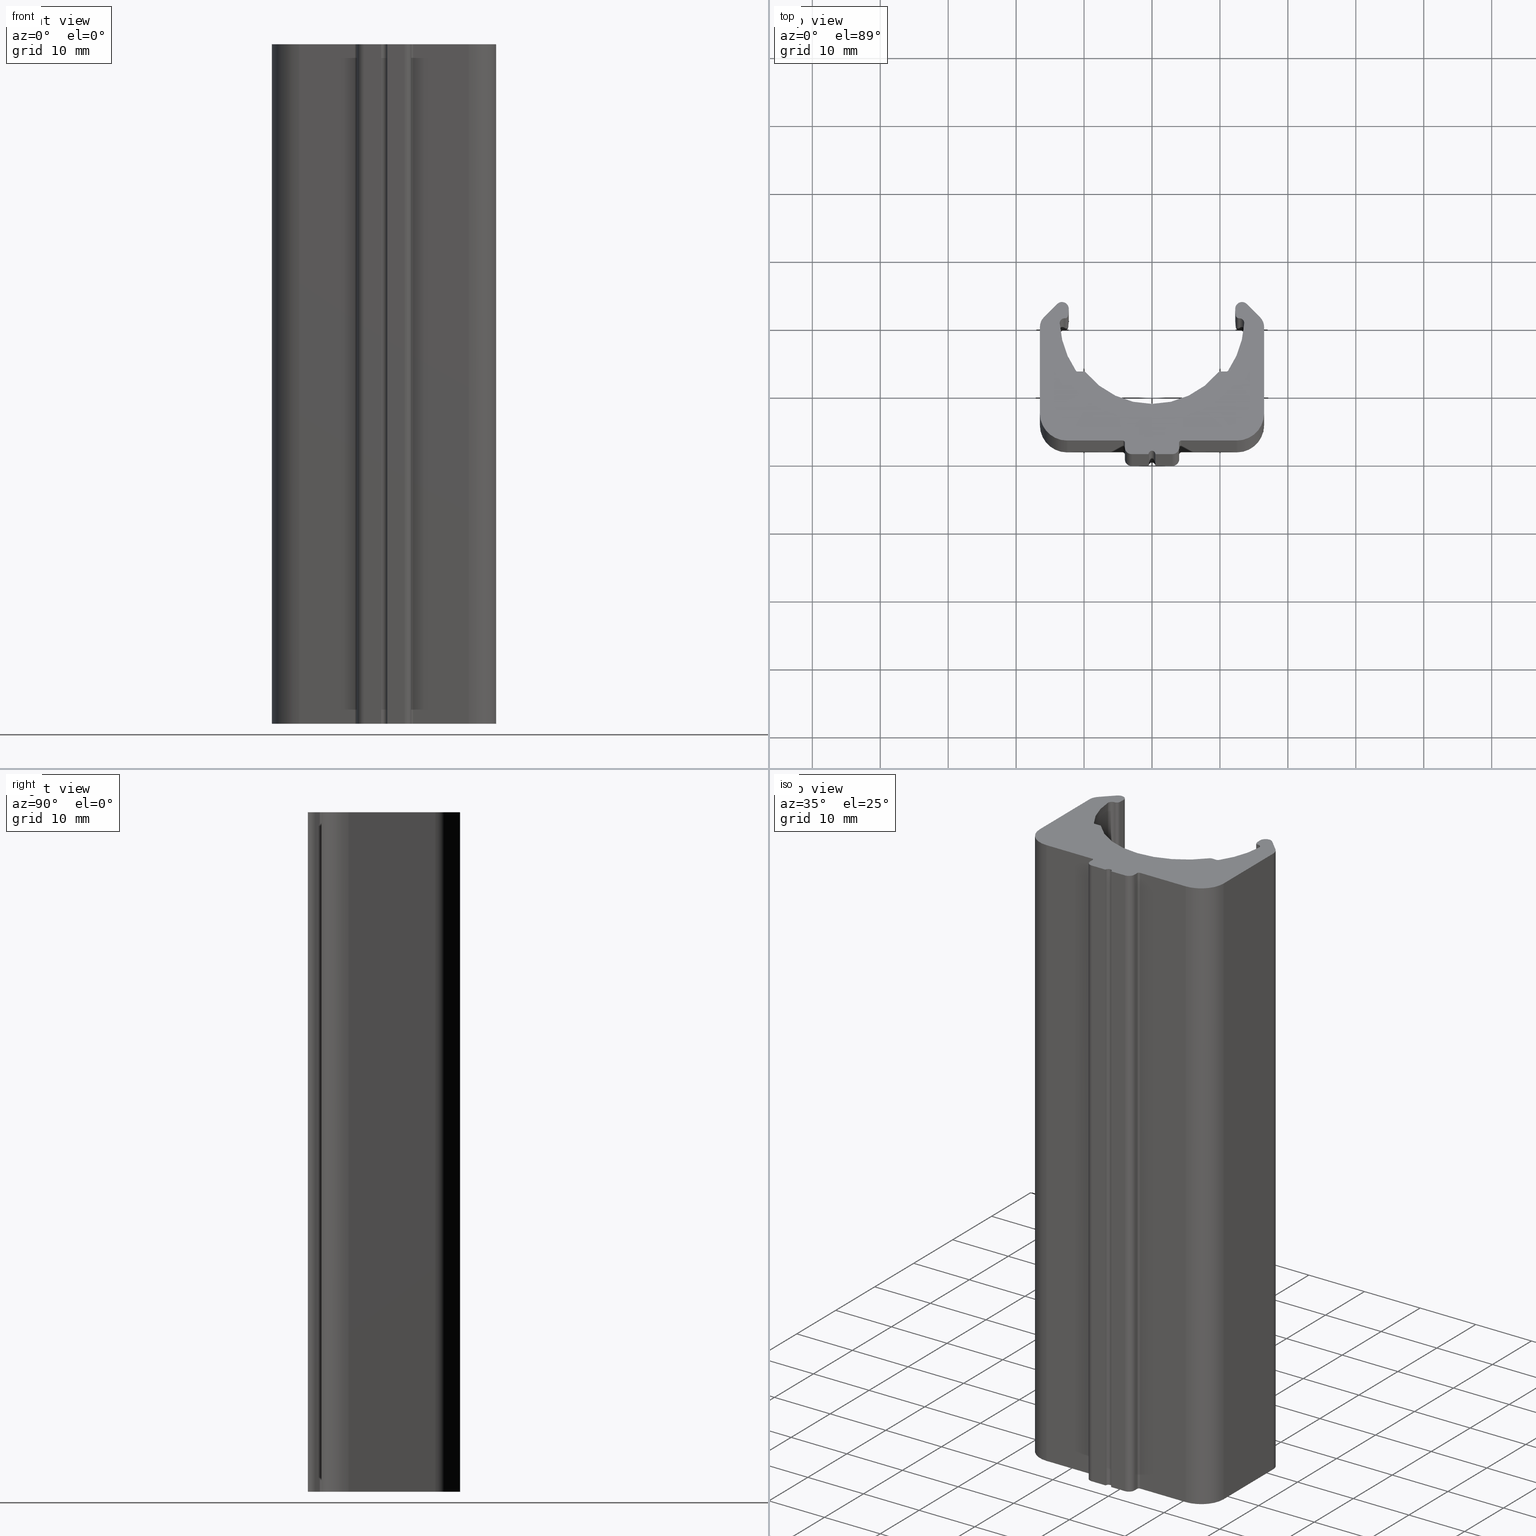
[diagram: canonical four-view strip — front | top / right | iso, engineering-drawing reading convention]
A machine part, canonical four-view strip (front | top / right | iso — engineering-drawing reading convention). The complete STEP part file that produces these views, byte-faithful:
ISO-10303-21;
HEADER;
/* Generated by software containing ST-Developer
 * from STEP Tools, Inc. (www.steptools.com) 
 */

FILE_DESCRIPTION(
/* description */ ('PROF. CONTENIM. TONDO D.25 '),
/* implementation_level */ '2;1');

FILE_NAME(
/* name */ 
'Q:\\Catalogo\\1_Profili Dierre\\Per Download Web e catalogo cartaceo\\
Profili Monorail\\BPRGD0000022.stp',
/* time_stamp */ '2018-02-27T12:03:16+01:00',
/* author */ ('fzagni'),
/* organization */ (''),
/* preprocessor_version */ 'ST-DEVELOPER v16.1',
/* originating_system */ 'Autodesk Inventor 2016',
/* authorisation */ '');

FILE_SCHEMA (('AUTOMOTIVE_DESIGN { 1 0 10303 214 3 1 1 }'));
ENDSEC;

DATA;
#10=MECHANICAL_DESIGN_GEOMETRIC_PRESENTATION_REPRESENTATION('',(#13),#1337);
#11=SHAPE_REPRESENTATION_RELATIONSHIP('SRR','None',#1346,#12);
#12=ADVANCED_BREP_SHAPE_REPRESENTATION('',(#14),#1336);
#13=STYLED_ITEM('',(#1355),#14);
#14=MANIFOLD_SOLID_BREP('Solido2',#777);
#15=CYLINDRICAL_SURFACE('',#802,1.);
#16=CYLINDRICAL_SURFACE('',#805,0.5);
#17=CYLINDRICAL_SURFACE('',#808,0.7);
#18=CYLINDRICAL_SURFACE('',#810,13.6);
#19=CYLINDRICAL_SURFACE('',#812,0.3);
#20=CYLINDRICAL_SURFACE('',#815,0.3);
#21=CYLINDRICAL_SURFACE('',#817,12.6);
#22=CYLINDRICAL_SURFACE('',#819,0.3);
#23=CYLINDRICAL_SURFACE('',#822,0.3);
#24=CYLINDRICAL_SURFACE('',#824,13.6);
#25=CYLINDRICAL_SURFACE('',#826,0.7);
#26=CYLINDRICAL_SURFACE('',#829,0.5);
#27=CYLINDRICAL_SURFACE('',#832,1.);
#28=CYLINDRICAL_SURFACE('',#835,2.);
#29=CYLINDRICAL_SURFACE('',#838,4.);
#30=CYLINDRICAL_SURFACE('',#841,0.3);
#31=CYLINDRICAL_SURFACE('',#844,1.);
#32=CYLINDRICAL_SURFACE('',#847,0.5);
#33=CYLINDRICAL_SURFACE('',#850,1.);
#34=CYLINDRICAL_SURFACE('',#853,0.3);
#35=CYLINDRICAL_SURFACE('',#856,4.);
#36=CYLINDRICAL_SURFACE('',#859,2.);
#37=FACE_OUTER_BOUND('',#77,.T.);
#38=FACE_OUTER_BOUND('',#78,.T.);
#39=FACE_OUTER_BOUND('',#79,.T.);
#40=FACE_OUTER_BOUND('',#80,.T.);
#41=FACE_OUTER_BOUND('',#81,.T.);
#42=FACE_OUTER_BOUND('',#82,.T.);
#43=FACE_OUTER_BOUND('',#83,.T.);
#44=FACE_OUTER_BOUND('',#84,.T.);
#45=FACE_OUTER_BOUND('',#85,.T.);
#46=FACE_OUTER_BOUND('',#86,.T.);
#47=FACE_OUTER_BOUND('',#87,.T.);
#48=FACE_OUTER_BOUND('',#88,.T.);
#49=FACE_OUTER_BOUND('',#89,.T.);
#50=FACE_OUTER_BOUND('',#90,.T.);
#51=FACE_OUTER_BOUND('',#91,.T.);
#52=FACE_OUTER_BOUND('',#92,.T.);
#53=FACE_OUTER_BOUND('',#93,.T.);
#54=FACE_OUTER_BOUND('',#94,.T.);
#55=FACE_OUTER_BOUND('',#95,.T.);
#56=FACE_OUTER_BOUND('',#96,.T.);
#57=FACE_OUTER_BOUND('',#97,.T.);
#58=FACE_OUTER_BOUND('',#98,.T.);
#59=FACE_OUTER_BOUND('',#99,.T.);
#60=FACE_OUTER_BOUND('',#100,.T.);
#61=FACE_OUTER_BOUND('',#101,.T.);
#62=FACE_OUTER_BOUND('',#102,.T.);
#63=FACE_OUTER_BOUND('',#103,.T.);
#64=FACE_OUTER_BOUND('',#104,.T.);
#65=FACE_OUTER_BOUND('',#105,.T.);
#66=FACE_OUTER_BOUND('',#106,.T.);
#67=FACE_OUTER_BOUND('',#107,.T.);
#68=FACE_OUTER_BOUND('',#108,.T.);
#69=FACE_OUTER_BOUND('',#109,.T.);
#70=FACE_OUTER_BOUND('',#110,.T.);
#71=FACE_OUTER_BOUND('',#111,.T.);
#72=FACE_OUTER_BOUND('',#112,.T.);
#73=FACE_OUTER_BOUND('',#113,.T.);
#74=FACE_OUTER_BOUND('',#114,.T.);
#75=FACE_OUTER_BOUND('',#115,.T.);
#76=FACE_OUTER_BOUND('',#116,.T.);
#77=EDGE_LOOP('',(#491,#492,#493,#494,#495,#496,#497,#498,#499,#500,#501,
#502,#503,#504,#505,#506,#507,#508,#509,#510,#511,#512,#513,#514,#515,#516,
#517,#518,#519,#520,#521,#522,#523,#524,#525,#526,#527,#528));
#78=EDGE_LOOP('',(#529,#530,#531,#532));
#79=EDGE_LOOP('',(#533,#534,#535,#536));
#80=EDGE_LOOP('',(#537,#538,#539,#540));
#81=EDGE_LOOP('',(#541,#542,#543,#544));
#82=EDGE_LOOP('',(#545,#546,#547,#548));
#83=EDGE_LOOP('',(#549,#550,#551,#552));
#84=EDGE_LOOP('',(#553,#554,#555,#556));
#85=EDGE_LOOP('',(#557,#558,#559,#560));
#86=EDGE_LOOP('',(#561,#562,#563,#564));
#87=EDGE_LOOP('',(#565,#566,#567,#568));
#88=EDGE_LOOP('',(#569,#570,#571,#572));
#89=EDGE_LOOP('',(#573,#574,#575,#576));
#90=EDGE_LOOP('',(#577,#578,#579,#580));
#91=EDGE_LOOP('',(#581,#582,#583,#584));
#92=EDGE_LOOP('',(#585,#586,#587,#588));
#93=EDGE_LOOP('',(#589,#590,#591,#592));
#94=EDGE_LOOP('',(#593,#594,#595,#596));
#95=EDGE_LOOP('',(#597,#598,#599,#600));
#96=EDGE_LOOP('',(#601,#602,#603,#604));
#97=EDGE_LOOP('',(#605,#606,#607,#608));
#98=EDGE_LOOP('',(#609,#610,#611,#612));
#99=EDGE_LOOP('',(#613,#614,#615,#616));
#100=EDGE_LOOP('',(#617,#618,#619,#620));
#101=EDGE_LOOP('',(#621,#622,#623,#624));
#102=EDGE_LOOP('',(#625,#626,#627,#628));
#103=EDGE_LOOP('',(#629,#630,#631,#632));
#104=EDGE_LOOP('',(#633,#634,#635,#636));
#105=EDGE_LOOP('',(#637,#638,#639,#640));
#106=EDGE_LOOP('',(#641,#642,#643,#644));
#107=EDGE_LOOP('',(#645,#646,#647,#648));
#108=EDGE_LOOP('',(#649,#650,#651,#652));
#109=EDGE_LOOP('',(#653,#654,#655,#656));
#110=EDGE_LOOP('',(#657,#658,#659,#660));
#111=EDGE_LOOP('',(#661,#662,#663,#664));
#112=EDGE_LOOP('',(#665,#666,#667,#668));
#113=EDGE_LOOP('',(#669,#670,#671,#672));
#114=EDGE_LOOP('',(#673,#674,#675,#676));
#115=EDGE_LOOP('',(#677,#678,#679,#680));
#116=EDGE_LOOP('',(#681,#682,#683,#684,#685,#686,#687,#688,#689,#690,#691,
#692,#693,#694,#695,#696,#697,#698,#699,#700,#701,#702,#703,#704,#705,#706,
#707,#708,#709,#710,#711,#712,#713,#714,#715,#716,#717,#718));
#117=CIRCLE('',#780,1.);
#118=CIRCLE('',#781,0.5);
#119=CIRCLE('',#782,0.7);
#120=CIRCLE('',#783,13.6);
#121=CIRCLE('',#784,0.3);
#122=CIRCLE('',#785,0.3);
#123=CIRCLE('',#786,12.6);
#124=CIRCLE('',#787,0.3);
#125=CIRCLE('',#788,0.3);
#126=CIRCLE('',#789,13.6);
#127=CIRCLE('',#790,0.7);
#128=CIRCLE('',#791,0.5);
#129=CIRCLE('',#792,1.);
#130=CIRCLE('',#793,2.);
#131=CIRCLE('',#794,4.);
#132=CIRCLE('',#795,0.3);
#133=CIRCLE('',#796,1.);
#134=CIRCLE('',#797,0.5);
#135=CIRCLE('',#798,1.);
#136=CIRCLE('',#799,0.3);
#137=CIRCLE('',#800,4.);
#138=CIRCLE('',#801,2.);
#139=CIRCLE('',#803,1.);
#140=CIRCLE('',#806,0.5);
#141=CIRCLE('',#809,0.7);
#142=CIRCLE('',#811,13.6);
#143=CIRCLE('',#813,0.3);
#144=CIRCLE('',#816,0.3);
#145=CIRCLE('',#818,12.6);
#146=CIRCLE('',#820,0.3);
#147=CIRCLE('',#823,0.3);
#148=CIRCLE('',#825,13.6);
#149=CIRCLE('',#827,0.7);
#150=CIRCLE('',#830,0.5);
#151=CIRCLE('',#833,1.);
#152=CIRCLE('',#836,2.);
#153=CIRCLE('',#839,4.);
#154=CIRCLE('',#842,0.3);
#155=CIRCLE('',#845,1.);
#156=CIRCLE('',#848,0.5);
#157=CIRCLE('',#851,1.);
#158=CIRCLE('',#854,0.3);
#159=CIRCLE('',#857,4.);
#160=CIRCLE('',#860,2.);
#161=LINE('',#1107,#231);
#162=LINE('',#1111,#232);
#163=LINE('',#1115,#233);
#164=LINE('',#1123,#234);
#165=LINE('',#1131,#235);
#166=LINE('',#1139,#236);
#167=LINE('',#1143,#237);
#168=LINE('',#1147,#238);
#169=LINE('',#1151,#239);
#170=LINE('',#1155,#240);
#171=LINE('',#1159,#241);
#172=LINE('',#1163,#242);
#173=LINE('',#1167,#243);
#174=LINE('',#1171,#244);
#175=LINE('',#1175,#245);
#176=LINE('',#1179,#246);
#177=LINE('',#1183,#247);
#178=LINE('',#1186,#248);
#179=LINE('',#1189,#249);
#180=LINE('',#1190,#250);
#181=LINE('',#1194,#251);
#182=LINE('',#1197,#252);
#183=LINE('',#1198,#253);
#184=LINE('',#1202,#254);
#185=LINE('',#1206,#255);
#186=LINE('',#1210,#256);
#187=LINE('',#1213,#257);
#188=LINE('',#1214,#258);
#189=LINE('',#1218,#259);
#190=LINE('',#1222,#260);
#191=LINE('',#1226,#261);
#192=LINE('',#1229,#262);
#193=LINE('',#1230,#263);
#194=LINE('',#1234,#264);
#195=LINE('',#1238,#265);
#196=LINE('',#1242,#266);
#197=LINE('',#1245,#267);
#198=LINE('',#1246,#268);
#199=LINE('',#1250,#269);
#200=LINE('',#1253,#270);
#201=LINE('',#1254,#271);
#202=LINE('',#1258,#272);
#203=LINE('',#1261,#273);
#204=LINE('',#1262,#274);
#205=LINE('',#1266,#275);
#206=LINE('',#1269,#276);
#207=LINE('',#1270,#277);
#208=LINE('',#1274,#278);
#209=LINE('',#1277,#279);
#210=LINE('',#1278,#280);
#211=LINE('',#1282,#281);
#212=LINE('',#1285,#282);
#213=LINE('',#1286,#283);
#214=LINE('',#1290,#284);
#215=LINE('',#1293,#285);
#216=LINE('',#1294,#286);
#217=LINE('',#1298,#287);
#218=LINE('',#1301,#288);
#219=LINE('',#1302,#289);
#220=LINE('',#1306,#290);
#221=LINE('',#1309,#291);
#222=LINE('',#1310,#292);
#223=LINE('',#1314,#293);
#224=LINE('',#1317,#294);
#225=LINE('',#1318,#295);
#226=LINE('',#1322,#296);
#227=LINE('',#1325,#297);
#228=LINE('',#1326,#298);
#229=LINE('',#1330,#299);
#230=LINE('',#1332,#300);
#231=VECTOR('',#867,2.76776695296624);
#232=VECTOR('',#870,0.859693522025739);
#233=VECTOR('',#873,0.054163872081836);
#234=VECTOR('',#880,0.948047782252279);
#235=VECTOR('',#887,0.948047782252375);
#236=VECTOR('',#894,0.0541638720819337);
#237=VECTOR('',#897,0.859693522026269);
#238=VECTOR('',#900,2.76776695296645);
#239=VECTOR('',#903,12.7357864376271);
#240=VECTOR('',#906,8.19999999999995);
#241=VECTOR('',#909,0.699999999999927);
#242=VECTOR('',#912,2.50000000000015);
#243=VECTOR('',#915,2.49999999999998);
#244=VECTOR('',#918,0.699999999999927);
#245=VECTOR('',#921,8.20000000000011);
#246=VECTOR('',#924,12.7357864376267);
#247=VECTOR('',#929,100.);
#248=VECTOR('',#932,100.);
#249=VECTOR('',#935,0.859693522025739);
#250=VECTOR('',#936,100.);
#251=VECTOR('',#941,100.);
#252=VECTOR('',#944,0.054163872081836);
#253=VECTOR('',#945,100.);
#254=VECTOR('',#950,100.);
#255=VECTOR('',#955,100.);
#256=VECTOR('',#960,100.);
#257=VECTOR('',#963,0.948047782252279);
#258=VECTOR('',#964,100.);
#259=VECTOR('',#969,100.);
#260=VECTOR('',#974,100.);
#261=VECTOR('',#979,100.);
#262=VECTOR('',#982,0.948047782252375);
#263=VECTOR('',#983,100.);
#264=VECTOR('',#988,100.);
#265=VECTOR('',#993,100.);
#266=VECTOR('',#998,100.);
#267=VECTOR('',#1001,0.0541638720819337);
#268=VECTOR('',#1002,100.);
#269=VECTOR('',#1007,100.);
#270=VECTOR('',#1010,0.859693522026269);
#271=VECTOR('',#1011,100.);
#272=VECTOR('',#1016,100.);
#273=VECTOR('',#1019,2.76776695296645);
#274=VECTOR('',#1020,100.);
#275=VECTOR('',#1025,100.);
#276=VECTOR('',#1028,12.7357864376271);
#277=VECTOR('',#1029,100.);
#278=VECTOR('',#1034,100.);
#279=VECTOR('',#1037,8.19999999999995);
#280=VECTOR('',#1038,100.);
#281=VECTOR('',#1043,100.);
#282=VECTOR('',#1046,0.699999999999927);
#283=VECTOR('',#1047,100.);
#284=VECTOR('',#1052,100.);
#285=VECTOR('',#1055,2.50000000000015);
#286=VECTOR('',#1056,100.);
#287=VECTOR('',#1061,100.);
#288=VECTOR('',#1064,2.49999999999998);
#289=VECTOR('',#1065,100.);
#290=VECTOR('',#1070,100.);
#291=VECTOR('',#1073,0.699999999999927);
#292=VECTOR('',#1074,100.);
#293=VECTOR('',#1079,100.);
#294=VECTOR('',#1082,8.20000000000011);
#295=VECTOR('',#1083,100.);
#296=VECTOR('',#1088,100.);
#297=VECTOR('',#1091,12.7357864376267);
#298=VECTOR('',#1092,100.);
#299=VECTOR('',#1097,100.);
#300=VECTOR('',#1100,2.76776695296624);
#301=VERTEX_POINT('',#1105);
#302=VERTEX_POINT('',#1106);
#303=VERTEX_POINT('',#1108);
#304=VERTEX_POINT('',#1110);
#305=VERTEX_POINT('',#1112);
#306=VERTEX_POINT('',#1114);
#307=VERTEX_POINT('',#1116);
#308=VERTEX_POINT('',#1118);
#309=VERTEX_POINT('',#1120);
#310=VERTEX_POINT('',#1122);
#311=VERTEX_POINT('',#1124);
#312=VERTEX_POINT('',#1126);
#313=VERTEX_POINT('',#1128);
#314=VERTEX_POINT('',#1130);
#315=VERTEX_POINT('',#1132);
#316=VERTEX_POINT('',#1134);
#317=VERTEX_POINT('',#1136);
#318=VERTEX_POINT('',#1138);
#319=VERTEX_POINT('',#1140);
#320=VERTEX_POINT('',#1142);
#321=VERTEX_POINT('',#1144);
#322=VERTEX_POINT('',#1146);
#323=VERTEX_POINT('',#1148);
#324=VERTEX_POINT('',#1150);
#325=VERTEX_POINT('',#1152);
#326=VERTEX_POINT('',#1154);
#327=VERTEX_POINT('',#1156);
#328=VERTEX_POINT('',#1158);
#329=VERTEX_POINT('',#1160);
#330=VERTEX_POINT('',#1162);
#331=VERTEX_POINT('',#1164);
#332=VERTEX_POINT('',#1166);
#333=VERTEX_POINT('',#1168);
#334=VERTEX_POINT('',#1170);
#335=VERTEX_POINT('',#1172);
#336=VERTEX_POINT('',#1174);
#337=VERTEX_POINT('',#1176);
#338=VERTEX_POINT('',#1178);
#339=VERTEX_POINT('',#1182);
#340=VERTEX_POINT('',#1184);
#341=VERTEX_POINT('',#1188);
#342=VERTEX_POINT('',#1192);
#343=VERTEX_POINT('',#1196);
#344=VERTEX_POINT('',#1200);
#345=VERTEX_POINT('',#1204);
#346=VERTEX_POINT('',#1208);
#347=VERTEX_POINT('',#1212);
#348=VERTEX_POINT('',#1216);
#349=VERTEX_POINT('',#1220);
#350=VERTEX_POINT('',#1224);
#351=VERTEX_POINT('',#1228);
#352=VERTEX_POINT('',#1232);
#353=VERTEX_POINT('',#1236);
#354=VERTEX_POINT('',#1240);
#355=VERTEX_POINT('',#1244);
#356=VERTEX_POINT('',#1248);
#357=VERTEX_POINT('',#1252);
#358=VERTEX_POINT('',#1256);
#359=VERTEX_POINT('',#1260);
#360=VERTEX_POINT('',#1264);
#361=VERTEX_POINT('',#1268);
#362=VERTEX_POINT('',#1272);
#363=VERTEX_POINT('',#1276);
#364=VERTEX_POINT('',#1280);
#365=VERTEX_POINT('',#1284);
#366=VERTEX_POINT('',#1288);
#367=VERTEX_POINT('',#1292);
#368=VERTEX_POINT('',#1296);
#369=VERTEX_POINT('',#1300);
#370=VERTEX_POINT('',#1304);
#371=VERTEX_POINT('',#1308);
#372=VERTEX_POINT('',#1312);
#373=VERTEX_POINT('',#1316);
#374=VERTEX_POINT('',#1320);
#375=VERTEX_POINT('',#1324);
#376=VERTEX_POINT('',#1328);
#377=EDGE_CURVE('',#301,#302,#161,.T.);
#378=EDGE_CURVE('',#302,#303,#117,.T.);
#379=EDGE_CURVE('',#303,#304,#162,.T.);
#380=EDGE_CURVE('',#304,#305,#118,.T.);
#381=EDGE_CURVE('',#305,#306,#163,.T.);
#382=EDGE_CURVE('',#306,#307,#119,.T.);
#383=EDGE_CURVE('',#307,#308,#120,.T.);
#384=EDGE_CURVE('',#308,#309,#121,.T.);
#385=EDGE_CURVE('',#309,#310,#164,.T.);
#386=EDGE_CURVE('',#310,#311,#122,.T.);
#387=EDGE_CURVE('',#311,#312,#123,.T.);
#388=EDGE_CURVE('',#312,#313,#124,.T.);
#389=EDGE_CURVE('',#313,#314,#165,.T.);
#390=EDGE_CURVE('',#314,#315,#125,.T.);
#391=EDGE_CURVE('',#315,#316,#126,.T.);
#392=EDGE_CURVE('',#316,#317,#127,.T.);
#393=EDGE_CURVE('',#317,#318,#166,.T.);
#394=EDGE_CURVE('',#318,#319,#128,.T.);
#395=EDGE_CURVE('',#319,#320,#167,.T.);
#396=EDGE_CURVE('',#320,#321,#129,.T.);
#397=EDGE_CURVE('',#321,#322,#168,.T.);
#398=EDGE_CURVE('',#322,#323,#130,.T.);
#399=EDGE_CURVE('',#323,#324,#169,.T.);
#400=EDGE_CURVE('',#324,#325,#131,.T.);
#401=EDGE_CURVE('',#325,#326,#170,.T.);
#402=EDGE_CURVE('',#326,#327,#132,.T.);
#403=EDGE_CURVE('',#327,#328,#171,.T.);
#404=EDGE_CURVE('',#328,#329,#133,.T.);
#405=EDGE_CURVE('',#329,#330,#172,.T.);
#406=EDGE_CURVE('',#330,#331,#134,.T.);
#407=EDGE_CURVE('',#331,#332,#173,.T.);
#408=EDGE_CURVE('',#332,#333,#135,.T.);
#409=EDGE_CURVE('',#333,#334,#174,.T.);
#410=EDGE_CURVE('',#334,#335,#136,.T.);
#411=EDGE_CURVE('',#335,#336,#175,.T.);
#412=EDGE_CURVE('',#336,#337,#137,.T.);
#413=EDGE_CURVE('',#337,#338,#176,.T.);
#414=EDGE_CURVE('',#338,#301,#138,.T.);
#415=EDGE_CURVE('',#339,#302,#177,.T.);
#416=EDGE_CURVE('',#340,#339,#139,.T.);
#417=EDGE_CURVE('',#303,#340,#178,.T.);
#418=EDGE_CURVE('',#341,#340,#179,.T.);
#419=EDGE_CURVE('',#304,#341,#180,.T.);
#420=EDGE_CURVE('',#342,#341,#140,.T.);
#421=EDGE_CURVE('',#305,#342,#181,.T.);
#422=EDGE_CURVE('',#343,#342,#182,.T.);
#423=EDGE_CURVE('',#306,#343,#183,.T.);
#424=EDGE_CURVE('',#344,#343,#141,.T.);
#425=EDGE_CURVE('',#307,#344,#184,.T.);
#426=EDGE_CURVE('',#345,#344,#142,.T.);
#427=EDGE_CURVE('',#308,#345,#185,.T.);
#428=EDGE_CURVE('',#346,#345,#143,.T.);
#429=EDGE_CURVE('',#309,#346,#186,.T.);
#430=EDGE_CURVE('',#347,#346,#187,.T.);
#431=EDGE_CURVE('',#310,#347,#188,.T.);
#432=EDGE_CURVE('',#348,#347,#144,.T.);
#433=EDGE_CURVE('',#311,#348,#189,.T.);
#434=EDGE_CURVE('',#349,#348,#145,.T.);
#435=EDGE_CURVE('',#312,#349,#190,.T.);
#436=EDGE_CURVE('',#350,#349,#146,.T.);
#437=EDGE_CURVE('',#313,#350,#191,.T.);
#438=EDGE_CURVE('',#351,#350,#192,.T.);
#439=EDGE_CURVE('',#314,#351,#193,.T.);
#440=EDGE_CURVE('',#352,#351,#147,.T.);
#441=EDGE_CURVE('',#315,#352,#194,.T.);
#442=EDGE_CURVE('',#353,#352,#148,.T.);
#443=EDGE_CURVE('',#316,#353,#195,.T.);
#444=EDGE_CURVE('',#354,#353,#149,.T.);
#445=EDGE_CURVE('',#317,#354,#196,.T.);
#446=EDGE_CURVE('',#355,#354,#197,.T.);
#447=EDGE_CURVE('',#318,#355,#198,.T.);
#448=EDGE_CURVE('',#356,#355,#150,.T.);
#449=EDGE_CURVE('',#319,#356,#199,.T.);
#450=EDGE_CURVE('',#357,#356,#200,.T.);
#451=EDGE_CURVE('',#320,#357,#201,.T.);
#452=EDGE_CURVE('',#358,#357,#151,.T.);
#453=EDGE_CURVE('',#321,#358,#202,.T.);
#454=EDGE_CURVE('',#359,#358,#203,.T.);
#455=EDGE_CURVE('',#322,#359,#204,.T.);
#456=EDGE_CURVE('',#360,#359,#152,.T.);
#457=EDGE_CURVE('',#323,#360,#205,.T.);
#458=EDGE_CURVE('',#361,#360,#206,.T.);
#459=EDGE_CURVE('',#324,#361,#207,.T.);
#460=EDGE_CURVE('',#362,#361,#153,.T.);
#461=EDGE_CURVE('',#325,#362,#208,.T.);
#462=EDGE_CURVE('',#363,#362,#209,.T.);
#463=EDGE_CURVE('',#326,#363,#210,.T.);
#464=EDGE_CURVE('',#364,#363,#154,.T.);
#465=EDGE_CURVE('',#327,#364,#211,.T.);
#466=EDGE_CURVE('',#365,#364,#212,.T.);
#467=EDGE_CURVE('',#328,#365,#213,.T.);
#468=EDGE_CURVE('',#366,#365,#155,.T.);
#469=EDGE_CURVE('',#329,#366,#214,.T.);
#470=EDGE_CURVE('',#367,#366,#215,.T.);
#471=EDGE_CURVE('',#330,#367,#216,.T.);
#472=EDGE_CURVE('',#368,#367,#156,.T.);
#473=EDGE_CURVE('',#331,#368,#217,.T.);
#474=EDGE_CURVE('',#369,#368,#218,.T.);
#475=EDGE_CURVE('',#332,#369,#219,.T.);
#476=EDGE_CURVE('',#370,#369,#157,.T.);
#477=EDGE_CURVE('',#333,#370,#220,.T.);
#478=EDGE_CURVE('',#371,#370,#221,.T.);
#479=EDGE_CURVE('',#334,#371,#222,.T.);
#480=EDGE_CURVE('',#372,#371,#158,.T.);
#481=EDGE_CURVE('',#335,#372,#223,.T.);
#482=EDGE_CURVE('',#373,#372,#224,.T.);
#483=EDGE_CURVE('',#336,#373,#225,.T.);
#484=EDGE_CURVE('',#374,#373,#159,.T.);
#485=EDGE_CURVE('',#337,#374,#226,.T.);
#486=EDGE_CURVE('',#375,#374,#227,.T.);
#487=EDGE_CURVE('',#338,#375,#228,.T.);
#488=EDGE_CURVE('',#376,#375,#160,.T.);
#489=EDGE_CURVE('',#301,#376,#229,.T.);
#490=EDGE_CURVE('',#339,#376,#230,.T.);
#491=ORIENTED_EDGE('',*,*,#377,.T.);
#492=ORIENTED_EDGE('',*,*,#378,.T.);
#493=ORIENTED_EDGE('',*,*,#379,.T.);
#494=ORIENTED_EDGE('',*,*,#380,.T.);
#495=ORIENTED_EDGE('',*,*,#381,.T.);
#496=ORIENTED_EDGE('',*,*,#382,.T.);
#497=ORIENTED_EDGE('',*,*,#383,.T.);
#498=ORIENTED_EDGE('',*,*,#384,.T.);
#499=ORIENTED_EDGE('',*,*,#385,.T.);
#500=ORIENTED_EDGE('',*,*,#386,.T.);
#501=ORIENTED_EDGE('',*,*,#387,.T.);
#502=ORIENTED_EDGE('',*,*,#388,.T.);
#503=ORIENTED_EDGE('',*,*,#389,.T.);
#504=ORIENTED_EDGE('',*,*,#390,.T.);
#505=ORIENTED_EDGE('',*,*,#391,.T.);
#506=ORIENTED_EDGE('',*,*,#392,.T.);
#507=ORIENTED_EDGE('',*,*,#393,.T.);
#508=ORIENTED_EDGE('',*,*,#394,.T.);
#509=ORIENTED_EDGE('',*,*,#395,.T.);
#510=ORIENTED_EDGE('',*,*,#396,.T.);
#511=ORIENTED_EDGE('',*,*,#397,.T.);
#512=ORIENTED_EDGE('',*,*,#398,.T.);
#513=ORIENTED_EDGE('',*,*,#399,.T.);
#514=ORIENTED_EDGE('',*,*,#400,.T.);
#515=ORIENTED_EDGE('',*,*,#401,.T.);
#516=ORIENTED_EDGE('',*,*,#402,.T.);
#517=ORIENTED_EDGE('',*,*,#403,.T.);
#518=ORIENTED_EDGE('',*,*,#404,.T.);
#519=ORIENTED_EDGE('',*,*,#405,.T.);
#520=ORIENTED_EDGE('',*,*,#406,.T.);
#521=ORIENTED_EDGE('',*,*,#407,.T.);
#522=ORIENTED_EDGE('',*,*,#408,.T.);
#523=ORIENTED_EDGE('',*,*,#409,.T.);
#524=ORIENTED_EDGE('',*,*,#410,.T.);
#525=ORIENTED_EDGE('',*,*,#411,.T.);
#526=ORIENTED_EDGE('',*,*,#412,.T.);
#527=ORIENTED_EDGE('',*,*,#413,.T.);
#528=ORIENTED_EDGE('',*,*,#414,.T.);
#529=ORIENTED_EDGE('',*,*,#415,.F.);
#530=ORIENTED_EDGE('',*,*,#416,.F.);
#531=ORIENTED_EDGE('',*,*,#417,.F.);
#532=ORIENTED_EDGE('',*,*,#378,.F.);
#533=ORIENTED_EDGE('',*,*,#417,.T.);
#534=ORIENTED_EDGE('',*,*,#418,.F.);
#535=ORIENTED_EDGE('',*,*,#419,.F.);
#536=ORIENTED_EDGE('',*,*,#379,.F.);
#537=ORIENTED_EDGE('',*,*,#419,.T.);
#538=ORIENTED_EDGE('',*,*,#420,.F.);
#539=ORIENTED_EDGE('',*,*,#421,.F.);
#540=ORIENTED_EDGE('',*,*,#380,.F.);
#541=ORIENTED_EDGE('',*,*,#421,.T.);
#542=ORIENTED_EDGE('',*,*,#422,.F.);
#543=ORIENTED_EDGE('',*,*,#423,.F.);
#544=ORIENTED_EDGE('',*,*,#381,.F.);
#545=ORIENTED_EDGE('',*,*,#423,.T.);
#546=ORIENTED_EDGE('',*,*,#424,.F.);
#547=ORIENTED_EDGE('',*,*,#425,.F.);
#548=ORIENTED_EDGE('',*,*,#382,.F.);
#549=ORIENTED_EDGE('',*,*,#425,.T.);
#550=ORIENTED_EDGE('',*,*,#426,.F.);
#551=ORIENTED_EDGE('',*,*,#427,.F.);
#552=ORIENTED_EDGE('',*,*,#383,.F.);
#553=ORIENTED_EDGE('',*,*,#427,.T.);
#554=ORIENTED_EDGE('',*,*,#428,.F.);
#555=ORIENTED_EDGE('',*,*,#429,.F.);
#556=ORIENTED_EDGE('',*,*,#384,.F.);
#557=ORIENTED_EDGE('',*,*,#429,.T.);
#558=ORIENTED_EDGE('',*,*,#430,.F.);
#559=ORIENTED_EDGE('',*,*,#431,.F.);
#560=ORIENTED_EDGE('',*,*,#385,.F.);
#561=ORIENTED_EDGE('',*,*,#431,.T.);
#562=ORIENTED_EDGE('',*,*,#432,.F.);
#563=ORIENTED_EDGE('',*,*,#433,.F.);
#564=ORIENTED_EDGE('',*,*,#386,.F.);
#565=ORIENTED_EDGE('',*,*,#433,.T.);
#566=ORIENTED_EDGE('',*,*,#434,.F.);
#567=ORIENTED_EDGE('',*,*,#435,.F.);
#568=ORIENTED_EDGE('',*,*,#387,.F.);
#569=ORIENTED_EDGE('',*,*,#435,.T.);
#570=ORIENTED_EDGE('',*,*,#436,.F.);
#571=ORIENTED_EDGE('',*,*,#437,.F.);
#572=ORIENTED_EDGE('',*,*,#388,.F.);
#573=ORIENTED_EDGE('',*,*,#437,.T.);
#574=ORIENTED_EDGE('',*,*,#438,.F.);
#575=ORIENTED_EDGE('',*,*,#439,.F.);
#576=ORIENTED_EDGE('',*,*,#389,.F.);
#577=ORIENTED_EDGE('',*,*,#439,.T.);
#578=ORIENTED_EDGE('',*,*,#440,.F.);
#579=ORIENTED_EDGE('',*,*,#441,.F.);
#580=ORIENTED_EDGE('',*,*,#390,.F.);
#581=ORIENTED_EDGE('',*,*,#441,.T.);
#582=ORIENTED_EDGE('',*,*,#442,.F.);
#583=ORIENTED_EDGE('',*,*,#443,.F.);
#584=ORIENTED_EDGE('',*,*,#391,.F.);
#585=ORIENTED_EDGE('',*,*,#443,.T.);
#586=ORIENTED_EDGE('',*,*,#444,.F.);
#587=ORIENTED_EDGE('',*,*,#445,.F.);
#588=ORIENTED_EDGE('',*,*,#392,.F.);
#589=ORIENTED_EDGE('',*,*,#445,.T.);
#590=ORIENTED_EDGE('',*,*,#446,.F.);
#591=ORIENTED_EDGE('',*,*,#447,.F.);
#592=ORIENTED_EDGE('',*,*,#393,.F.);
#593=ORIENTED_EDGE('',*,*,#447,.T.);
#594=ORIENTED_EDGE('',*,*,#448,.F.);
#595=ORIENTED_EDGE('',*,*,#449,.F.);
#596=ORIENTED_EDGE('',*,*,#394,.F.);
#597=ORIENTED_EDGE('',*,*,#449,.T.);
#598=ORIENTED_EDGE('',*,*,#450,.F.);
#599=ORIENTED_EDGE('',*,*,#451,.F.);
#600=ORIENTED_EDGE('',*,*,#395,.F.);
#601=ORIENTED_EDGE('',*,*,#451,.T.);
#602=ORIENTED_EDGE('',*,*,#452,.F.);
#603=ORIENTED_EDGE('',*,*,#453,.F.);
#604=ORIENTED_EDGE('',*,*,#396,.F.);
#605=ORIENTED_EDGE('',*,*,#453,.T.);
#606=ORIENTED_EDGE('',*,*,#454,.F.);
#607=ORIENTED_EDGE('',*,*,#455,.F.);
#608=ORIENTED_EDGE('',*,*,#397,.F.);
#609=ORIENTED_EDGE('',*,*,#455,.T.);
#610=ORIENTED_EDGE('',*,*,#456,.F.);
#611=ORIENTED_EDGE('',*,*,#457,.F.);
#612=ORIENTED_EDGE('',*,*,#398,.F.);
#613=ORIENTED_EDGE('',*,*,#457,.T.);
#614=ORIENTED_EDGE('',*,*,#458,.F.);
#615=ORIENTED_EDGE('',*,*,#459,.F.);
#616=ORIENTED_EDGE('',*,*,#399,.F.);
#617=ORIENTED_EDGE('',*,*,#459,.T.);
#618=ORIENTED_EDGE('',*,*,#460,.F.);
#619=ORIENTED_EDGE('',*,*,#461,.F.);
#620=ORIENTED_EDGE('',*,*,#400,.F.);
#621=ORIENTED_EDGE('',*,*,#461,.T.);
#622=ORIENTED_EDGE('',*,*,#462,.F.);
#623=ORIENTED_EDGE('',*,*,#463,.F.);
#624=ORIENTED_EDGE('',*,*,#401,.F.);
#625=ORIENTED_EDGE('',*,*,#463,.T.);
#626=ORIENTED_EDGE('',*,*,#464,.F.);
#627=ORIENTED_EDGE('',*,*,#465,.F.);
#628=ORIENTED_EDGE('',*,*,#402,.F.);
#629=ORIENTED_EDGE('',*,*,#465,.T.);
#630=ORIENTED_EDGE('',*,*,#466,.F.);
#631=ORIENTED_EDGE('',*,*,#467,.F.);
#632=ORIENTED_EDGE('',*,*,#403,.F.);
#633=ORIENTED_EDGE('',*,*,#467,.T.);
#634=ORIENTED_EDGE('',*,*,#468,.F.);
#635=ORIENTED_EDGE('',*,*,#469,.F.);
#636=ORIENTED_EDGE('',*,*,#404,.F.);
#637=ORIENTED_EDGE('',*,*,#469,.T.);
#638=ORIENTED_EDGE('',*,*,#470,.F.);
#639=ORIENTED_EDGE('',*,*,#471,.F.);
#640=ORIENTED_EDGE('',*,*,#405,.F.);
#641=ORIENTED_EDGE('',*,*,#471,.T.);
#642=ORIENTED_EDGE('',*,*,#472,.F.);
#643=ORIENTED_EDGE('',*,*,#473,.F.);
#644=ORIENTED_EDGE('',*,*,#406,.F.);
#645=ORIENTED_EDGE('',*,*,#473,.T.);
#646=ORIENTED_EDGE('',*,*,#474,.F.);
#647=ORIENTED_EDGE('',*,*,#475,.F.);
#648=ORIENTED_EDGE('',*,*,#407,.F.);
#649=ORIENTED_EDGE('',*,*,#475,.T.);
#650=ORIENTED_EDGE('',*,*,#476,.F.);
#651=ORIENTED_EDGE('',*,*,#477,.F.);
#652=ORIENTED_EDGE('',*,*,#408,.F.);
#653=ORIENTED_EDGE('',*,*,#477,.T.);
#654=ORIENTED_EDGE('',*,*,#478,.F.);
#655=ORIENTED_EDGE('',*,*,#479,.F.);
#656=ORIENTED_EDGE('',*,*,#409,.F.);
#657=ORIENTED_EDGE('',*,*,#479,.T.);
#658=ORIENTED_EDGE('',*,*,#480,.F.);
#659=ORIENTED_EDGE('',*,*,#481,.F.);
#660=ORIENTED_EDGE('',*,*,#410,.F.);
#661=ORIENTED_EDGE('',*,*,#481,.T.);
#662=ORIENTED_EDGE('',*,*,#482,.F.);
#663=ORIENTED_EDGE('',*,*,#483,.F.);
#664=ORIENTED_EDGE('',*,*,#411,.F.);
#665=ORIENTED_EDGE('',*,*,#483,.T.);
#666=ORIENTED_EDGE('',*,*,#484,.F.);
#667=ORIENTED_EDGE('',*,*,#485,.F.);
#668=ORIENTED_EDGE('',*,*,#412,.F.);
#669=ORIENTED_EDGE('',*,*,#485,.T.);
#670=ORIENTED_EDGE('',*,*,#486,.F.);
#671=ORIENTED_EDGE('',*,*,#487,.F.);
#672=ORIENTED_EDGE('',*,*,#413,.F.);
#673=ORIENTED_EDGE('',*,*,#487,.T.);
#674=ORIENTED_EDGE('',*,*,#488,.F.);
#675=ORIENTED_EDGE('',*,*,#489,.F.);
#676=ORIENTED_EDGE('',*,*,#414,.F.);
#677=ORIENTED_EDGE('',*,*,#489,.T.);
#678=ORIENTED_EDGE('',*,*,#490,.F.);
#679=ORIENTED_EDGE('',*,*,#415,.T.);
#680=ORIENTED_EDGE('',*,*,#377,.F.);
#681=ORIENTED_EDGE('',*,*,#490,.T.);
#682=ORIENTED_EDGE('',*,*,#488,.T.);
#683=ORIENTED_EDGE('',*,*,#486,.T.);
#684=ORIENTED_EDGE('',*,*,#484,.T.);
#685=ORIENTED_EDGE('',*,*,#482,.T.);
#686=ORIENTED_EDGE('',*,*,#480,.T.);
#687=ORIENTED_EDGE('',*,*,#478,.T.);
#688=ORIENTED_EDGE('',*,*,#476,.T.);
#689=ORIENTED_EDGE('',*,*,#474,.T.);
#690=ORIENTED_EDGE('',*,*,#472,.T.);
#691=ORIENTED_EDGE('',*,*,#470,.T.);
#692=ORIENTED_EDGE('',*,*,#468,.T.);
#693=ORIENTED_EDGE('',*,*,#466,.T.);
#694=ORIENTED_EDGE('',*,*,#464,.T.);
#695=ORIENTED_EDGE('',*,*,#462,.T.);
#696=ORIENTED_EDGE('',*,*,#460,.T.);
#697=ORIENTED_EDGE('',*,*,#458,.T.);
#698=ORIENTED_EDGE('',*,*,#456,.T.);
#699=ORIENTED_EDGE('',*,*,#454,.T.);
#700=ORIENTED_EDGE('',*,*,#452,.T.);
#701=ORIENTED_EDGE('',*,*,#450,.T.);
#702=ORIENTED_EDGE('',*,*,#448,.T.);
#703=ORIENTED_EDGE('',*,*,#446,.T.);
#704=ORIENTED_EDGE('',*,*,#444,.T.);
#705=ORIENTED_EDGE('',*,*,#442,.T.);
#706=ORIENTED_EDGE('',*,*,#440,.T.);
#707=ORIENTED_EDGE('',*,*,#438,.T.);
#708=ORIENTED_EDGE('',*,*,#436,.T.);
#709=ORIENTED_EDGE('',*,*,#434,.T.);
#710=ORIENTED_EDGE('',*,*,#432,.T.);
#711=ORIENTED_EDGE('',*,*,#430,.T.);
#712=ORIENTED_EDGE('',*,*,#428,.T.);
#713=ORIENTED_EDGE('',*,*,#426,.T.);
#714=ORIENTED_EDGE('',*,*,#424,.T.);
#715=ORIENTED_EDGE('',*,*,#422,.T.);
#716=ORIENTED_EDGE('',*,*,#420,.T.);
#717=ORIENTED_EDGE('',*,*,#418,.T.);
#718=ORIENTED_EDGE('',*,*,#416,.T.);
#719=PLANE('',#779);
#720=PLANE('',#804);
#721=PLANE('',#807);
#722=PLANE('',#814);
#723=PLANE('',#821);
#724=PLANE('',#828);
#725=PLANE('',#831);
#726=PLANE('',#834);
#727=PLANE('',#837);
#728=PLANE('',#840);
#729=PLANE('',#843);
#730=PLANE('',#846);
#731=PLANE('',#849);
#732=PLANE('',#852);
#733=PLANE('',#855);
#734=PLANE('',#858);
#735=PLANE('',#861);
#736=PLANE('',#862);
#737=ADVANCED_FACE('',(#37),#719,.F.);
#738=ADVANCED_FACE('',(#38),#15,.T.);
#739=ADVANCED_FACE('',(#39),#720,.T.);
#740=ADVANCED_FACE('',(#40),#16,.T.);
#741=ADVANCED_FACE('',(#41),#721,.T.);
#742=ADVANCED_FACE('',(#42),#17,.F.);
#743=ADVANCED_FACE('',(#43),#18,.F.);
#744=ADVANCED_FACE('',(#44),#19,.F.);
#745=ADVANCED_FACE('',(#45),#722,.T.);
#746=ADVANCED_FACE('',(#46),#20,.T.);
#747=ADVANCED_FACE('',(#47),#21,.F.);
#748=ADVANCED_FACE('',(#48),#22,.T.);
#749=ADVANCED_FACE('',(#49),#723,.T.);
#750=ADVANCED_FACE('',(#50),#23,.F.);
#751=ADVANCED_FACE('',(#51),#24,.F.);
#752=ADVANCED_FACE('',(#52),#25,.F.);
#753=ADVANCED_FACE('',(#53),#724,.T.);
#754=ADVANCED_FACE('',(#54),#26,.T.);
#755=ADVANCED_FACE('',(#55),#725,.T.);
#756=ADVANCED_FACE('',(#56),#27,.T.);
#757=ADVANCED_FACE('',(#57),#726,.T.);
#758=ADVANCED_FACE('',(#58),#28,.T.);
#759=ADVANCED_FACE('',(#59),#727,.T.);
#760=ADVANCED_FACE('',(#60),#29,.T.);
#761=ADVANCED_FACE('',(#61),#728,.T.);
#762=ADVANCED_FACE('',(#62),#30,.F.);
#763=ADVANCED_FACE('',(#63),#729,.T.);
#764=ADVANCED_FACE('',(#64),#31,.T.);
#765=ADVANCED_FACE('',(#65),#730,.T.);
#766=ADVANCED_FACE('',(#66),#32,.F.);
#767=ADVANCED_FACE('',(#67),#731,.T.);
#768=ADVANCED_FACE('',(#68),#33,.T.);
#769=ADVANCED_FACE('',(#69),#732,.T.);
#770=ADVANCED_FACE('',(#70),#34,.F.);
#771=ADVANCED_FACE('',(#71),#733,.T.);
#772=ADVANCED_FACE('',(#72),#35,.T.);
#773=ADVANCED_FACE('',(#73),#734,.T.);
#774=ADVANCED_FACE('',(#74),#36,.T.);
#775=ADVANCED_FACE('',(#75),#735,.T.);
#776=ADVANCED_FACE('',(#76),#736,.T.);
#777=CLOSED_SHELL('',(#737,#738,#739,#740,#741,#742,#743,#744,#745,#746,
#747,#748,#749,#750,#751,#752,#753,#754,#755,#756,#757,#758,#759,#760,#761,
#762,#763,#764,#765,#766,#767,#768,#769,#770,#771,#772,#773,#774,#775,#776));
#778=AXIS2_PLACEMENT_3D('placement',#1103,#863,#864);
#779=AXIS2_PLACEMENT_3D('',#1104,#865,#866);
#780=AXIS2_PLACEMENT_3D('',#1109,#868,#869);
#781=AXIS2_PLACEMENT_3D('',#1113,#871,#872);
#782=AXIS2_PLACEMENT_3D('',#1117,#874,#875);
#783=AXIS2_PLACEMENT_3D('',#1119,#876,#877);
#784=AXIS2_PLACEMENT_3D('',#1121,#878,#879);
#785=AXIS2_PLACEMENT_3D('',#1125,#881,#882);
#786=AXIS2_PLACEMENT_3D('',#1127,#883,#884);
#787=AXIS2_PLACEMENT_3D('',#1129,#885,#886);
#788=AXIS2_PLACEMENT_3D('',#1133,#888,#889);
#789=AXIS2_PLACEMENT_3D('',#1135,#890,#891);
#790=AXIS2_PLACEMENT_3D('',#1137,#892,#893);
#791=AXIS2_PLACEMENT_3D('',#1141,#895,#896);
#792=AXIS2_PLACEMENT_3D('',#1145,#898,#899);
#793=AXIS2_PLACEMENT_3D('',#1149,#901,#902);
#794=AXIS2_PLACEMENT_3D('',#1153,#904,#905);
#795=AXIS2_PLACEMENT_3D('',#1157,#907,#908);
#796=AXIS2_PLACEMENT_3D('',#1161,#910,#911);
#797=AXIS2_PLACEMENT_3D('',#1165,#913,#914);
#798=AXIS2_PLACEMENT_3D('',#1169,#916,#917);
#799=AXIS2_PLACEMENT_3D('',#1173,#919,#920);
#800=AXIS2_PLACEMENT_3D('',#1177,#922,#923);
#801=AXIS2_PLACEMENT_3D('',#1180,#925,#926);
#802=AXIS2_PLACEMENT_3D('',#1181,#927,#928);
#803=AXIS2_PLACEMENT_3D('',#1185,#930,#931);
#804=AXIS2_PLACEMENT_3D('',#1187,#933,#934);
#805=AXIS2_PLACEMENT_3D('',#1191,#937,#938);
#806=AXIS2_PLACEMENT_3D('',#1193,#939,#940);
#807=AXIS2_PLACEMENT_3D('',#1195,#942,#943);
#808=AXIS2_PLACEMENT_3D('',#1199,#946,#947);
#809=AXIS2_PLACEMENT_3D('',#1201,#948,#949);
#810=AXIS2_PLACEMENT_3D('',#1203,#951,#952);
#811=AXIS2_PLACEMENT_3D('',#1205,#953,#954);
#812=AXIS2_PLACEMENT_3D('',#1207,#956,#957);
#813=AXIS2_PLACEMENT_3D('',#1209,#958,#959);
#814=AXIS2_PLACEMENT_3D('',#1211,#961,#962);
#815=AXIS2_PLACEMENT_3D('',#1215,#965,#966);
#816=AXIS2_PLACEMENT_3D('',#1217,#967,#968);
#817=AXIS2_PLACEMENT_3D('',#1219,#970,#971);
#818=AXIS2_PLACEMENT_3D('',#1221,#972,#973);
#819=AXIS2_PLACEMENT_3D('',#1223,#975,#976);
#820=AXIS2_PLACEMENT_3D('',#1225,#977,#978);
#821=AXIS2_PLACEMENT_3D('',#1227,#980,#981);
#822=AXIS2_PLACEMENT_3D('',#1231,#984,#985);
#823=AXIS2_PLACEMENT_3D('',#1233,#986,#987);
#824=AXIS2_PLACEMENT_3D('',#1235,#989,#990);
#825=AXIS2_PLACEMENT_3D('',#1237,#991,#992);
#826=AXIS2_PLACEMENT_3D('',#1239,#994,#995);
#827=AXIS2_PLACEMENT_3D('',#1241,#996,#997);
#828=AXIS2_PLACEMENT_3D('',#1243,#999,#1000);
#829=AXIS2_PLACEMENT_3D('',#1247,#1003,#1004);
#830=AXIS2_PLACEMENT_3D('',#1249,#1005,#1006);
#831=AXIS2_PLACEMENT_3D('',#1251,#1008,#1009);
#832=AXIS2_PLACEMENT_3D('',#1255,#1012,#1013);
#833=AXIS2_PLACEMENT_3D('',#1257,#1014,#1015);
#834=AXIS2_PLACEMENT_3D('',#1259,#1017,#1018);
#835=AXIS2_PLACEMENT_3D('',#1263,#1021,#1022);
#836=AXIS2_PLACEMENT_3D('',#1265,#1023,#1024);
#837=AXIS2_PLACEMENT_3D('',#1267,#1026,#1027);
#838=AXIS2_PLACEMENT_3D('',#1271,#1030,#1031);
#839=AXIS2_PLACEMENT_3D('',#1273,#1032,#1033);
#840=AXIS2_PLACEMENT_3D('',#1275,#1035,#1036);
#841=AXIS2_PLACEMENT_3D('',#1279,#1039,#1040);
#842=AXIS2_PLACEMENT_3D('',#1281,#1041,#1042);
#843=AXIS2_PLACEMENT_3D('',#1283,#1044,#1045);
#844=AXIS2_PLACEMENT_3D('',#1287,#1048,#1049);
#845=AXIS2_PLACEMENT_3D('',#1289,#1050,#1051);
#846=AXIS2_PLACEMENT_3D('',#1291,#1053,#1054);
#847=AXIS2_PLACEMENT_3D('',#1295,#1057,#1058);
#848=AXIS2_PLACEMENT_3D('',#1297,#1059,#1060);
#849=AXIS2_PLACEMENT_3D('',#1299,#1062,#1063);
#850=AXIS2_PLACEMENT_3D('',#1303,#1066,#1067);
#851=AXIS2_PLACEMENT_3D('',#1305,#1068,#1069);
#852=AXIS2_PLACEMENT_3D('',#1307,#1071,#1072);
#853=AXIS2_PLACEMENT_3D('',#1311,#1075,#1076);
#854=AXIS2_PLACEMENT_3D('',#1313,#1077,#1078);
#855=AXIS2_PLACEMENT_3D('',#1315,#1080,#1081);
#856=AXIS2_PLACEMENT_3D('',#1319,#1084,#1085);
#857=AXIS2_PLACEMENT_3D('',#1321,#1086,#1087);
#858=AXIS2_PLACEMENT_3D('',#1323,#1089,#1090);
#859=AXIS2_PLACEMENT_3D('',#1327,#1093,#1094);
#860=AXIS2_PLACEMENT_3D('',#1329,#1095,#1096);
#861=AXIS2_PLACEMENT_3D('',#1331,#1098,#1099);
#862=AXIS2_PLACEMENT_3D('',#1333,#1101,#1102);
#863=DIRECTION('axis',(0.,0.,1.));
#864=DIRECTION('refdir',(1.,0.,0.));
#865=DIRECTION('center_axis',(0.,0.,1.));
#866=DIRECTION('ref_axis',(1.,0.,0.));
#867=DIRECTION('',(0.707106781186548,0.707106781186547,0.));
#868=DIRECTION('center_axis',(0.,0.,-1.));
#869=DIRECTION('ref_axis',(0.996194698091743,-0.0871557427476883,0.));
#870=DIRECTION('',(-0.0871557427476915,-0.996194698091743,0.));
#871=DIRECTION('center_axis',(0.,0.,-1.));
#872=DIRECTION('ref_axis',(0.,-1.,0.));
#873=DIRECTION('',(-1.,0.,0.));
#874=DIRECTION('center_axis',(0.,0.,1.));
#875=DIRECTION('ref_axis',(0.,-1.,0.));
#876=DIRECTION('center_axis',(0.,0.,1.));
#877=DIRECTION('ref_axis',(0.998526647324317,0.0542635658914763,0.));
#878=DIRECTION('center_axis',(0.,0.,1.));
#879=DIRECTION('ref_axis',(0.824038762121902,0.566533422244974,0.));
#880=DIRECTION('',(1.,1.63948723215473E-13,0.));
#881=DIRECTION('center_axis',(0.,0.,-1.));
#882=DIRECTION('ref_axis',(0.776098275501477,0.630611977973487,0.));
#883=DIRECTION('center_axis',(0.,0.,1.));
#884=DIRECTION('ref_axis',(0.776098275501474,0.63061197797349,0.));
#885=DIRECTION('center_axis',(0.,0.,-1.));
#886=DIRECTION('ref_axis',(0.,1.,0.));
#887=DIRECTION('',(1.,0.,0.));
#888=DIRECTION('center_axis',(0.,0.,1.));
#889=DIRECTION('ref_axis',(0.,1.,0.));
#890=DIRECTION('center_axis',(0.,0.,1.));
#891=DIRECTION('ref_axis',(-0.82403876212191,0.566533422244964,0.));
#892=DIRECTION('center_axis',(0.,0.,1.));
#893=DIRECTION('ref_axis',(-0.998526647324319,0.0542635658914468,0.));
#894=DIRECTION('',(-1.,0.,0.));
#895=DIRECTION('center_axis',(0.,0.,-1.));
#896=DIRECTION('ref_axis',(-0.996194698091749,-0.087155742747624,0.));
#897=DIRECTION('',(-0.0871557427476248,0.996194698091748,0.));
#898=DIRECTION('center_axis',(0.,0.,-1.));
#899=DIRECTION('ref_axis',(0.707106781186548,0.707106781186548,0.));
#900=DIRECTION('',(0.707106781186547,-0.707106781186547,0.));
#901=DIRECTION('center_axis',(0.,0.,-1.));
#902=DIRECTION('ref_axis',(1.,0.,0.));
#903=DIRECTION('',(0.,-1.,0.));
#904=DIRECTION('center_axis',(0.,0.,-1.));
#905=DIRECTION('ref_axis',(0.,-1.,0.));
#906=DIRECTION('',(-1.,-2.70786103567113E-16,0.));
#907=DIRECTION('center_axis',(0.,0.,1.));
#908=DIRECTION('ref_axis',(0.,-1.,0.));
#909=DIRECTION('',(0.,-1.,0.));
#910=DIRECTION('center_axis',(0.,0.,-1.));
#911=DIRECTION('ref_axis',(0.,-1.,0.));
#912=DIRECTION('',(-1.,0.,0.));
#913=DIRECTION('center_axis',(0.,0.,1.));
#914=DIRECTION('ref_axis',(-1.,0.,0.));
#915=DIRECTION('',(-1.,8.88178419700132E-16,0.));
#916=DIRECTION('center_axis',(0.,0.,-1.));
#917=DIRECTION('ref_axis',(-1.,0.,0.));
#918=DIRECTION('',(-6.34413156928727E-15,1.,0.));
#919=DIRECTION('center_axis',(0.,0.,1.));
#920=DIRECTION('ref_axis',(-1.,0.,0.));
#921=DIRECTION('',(-1.,5.41572207134216E-16,0.));
#922=DIRECTION('center_axis',(0.,0.,-1.));
#923=DIRECTION('ref_axis',(-1.,0.,0.));
#924=DIRECTION('',(0.,1.,0.));
#925=DIRECTION('center_axis',(0.,0.,-1.));
#926=DIRECTION('ref_axis',(-0.707106781186548,0.707106781186548,0.));
#927=DIRECTION('center_axis',(0.,0.,1.));
#928=DIRECTION('ref_axis',(0.996194698091743,-0.0871557427476883,0.));
#929=DIRECTION('',(0.,0.,-1.));
#930=DIRECTION('center_axis',(0.,0.,1.));
#931=DIRECTION('ref_axis',(0.996194698091743,-0.0871557427476883,0.));
#932=DIRECTION('',(0.,0.,1.));
#933=DIRECTION('center_axis',(0.996194698091743,-0.0871557427476915,0.));
#934=DIRECTION('ref_axis',(0.0871557427476916,0.996194698091743,0.));
#935=DIRECTION('',(0.0871557427476915,0.996194698091743,0.));
#936=DIRECTION('',(0.,0.,1.));
#937=DIRECTION('center_axis',(0.,0.,1.));
#938=DIRECTION('ref_axis',(0.,-1.,0.));
#939=DIRECTION('center_axis',(0.,0.,1.));
#940=DIRECTION('ref_axis',(0.,-1.,0.));
#941=DIRECTION('',(0.,0.,1.));
#942=DIRECTION('center_axis',(0.,-1.,0.));
#943=DIRECTION('ref_axis',(1.,0.,0.));
#944=DIRECTION('',(1.,0.,0.));
#945=DIRECTION('',(0.,0.,1.));
#946=DIRECTION('center_axis',(0.,0.,1.));
#947=DIRECTION('ref_axis',(0.,-1.,0.));
#948=DIRECTION('center_axis',(0.,0.,-1.));
#949=DIRECTION('ref_axis',(0.,-1.,0.));
#950=DIRECTION('',(0.,0.,1.));
#951=DIRECTION('center_axis',(0.,0.,1.));
#952=DIRECTION('ref_axis',(0.998526647324317,0.0542635658914763,0.));
#953=DIRECTION('center_axis',(0.,0.,-1.));
#954=DIRECTION('ref_axis',(0.998526647324317,0.0542635658914763,0.));
#955=DIRECTION('',(0.,0.,1.));
#956=DIRECTION('center_axis',(0.,0.,1.));
#957=DIRECTION('ref_axis',(0.824038762121902,0.566533422244974,0.));
#958=DIRECTION('center_axis',(0.,0.,-1.));
#959=DIRECTION('ref_axis',(0.824038762121902,0.566533422244974,0.));
#960=DIRECTION('',(0.,0.,1.));
#961=DIRECTION('center_axis',(-1.63948723215473E-13,1.,0.));
#962=DIRECTION('ref_axis',(-1.,-1.63957736276643E-13,0.));
#963=DIRECTION('',(-1.,-1.63948723215473E-13,0.));
#964=DIRECTION('',(0.,0.,1.));
#965=DIRECTION('center_axis',(0.,0.,1.));
#966=DIRECTION('ref_axis',(0.776098275501477,0.630611977973487,0.));
#967=DIRECTION('center_axis',(0.,0.,1.));
#968=DIRECTION('ref_axis',(0.776098275501477,0.630611977973487,0.));
#969=DIRECTION('',(0.,0.,1.));
#970=DIRECTION('center_axis',(0.,0.,1.));
#971=DIRECTION('ref_axis',(0.776098275501474,0.63061197797349,0.));
#972=DIRECTION('center_axis',(0.,0.,-1.));
#973=DIRECTION('ref_axis',(0.776098275501474,0.63061197797349,0.));
#974=DIRECTION('',(0.,0.,1.));
#975=DIRECTION('center_axis',(0.,0.,1.));
#976=DIRECTION('ref_axis',(0.,1.,0.));
#977=DIRECTION('center_axis',(0.,0.,1.));
#978=DIRECTION('ref_axis',(0.,1.,0.));
#979=DIRECTION('',(0.,0.,1.));
#980=DIRECTION('center_axis',(0.,1.,0.));
#981=DIRECTION('ref_axis',(-1.,0.,0.));
#982=DIRECTION('',(-1.,0.,0.));
#983=DIRECTION('',(0.,0.,1.));
#984=DIRECTION('center_axis',(0.,0.,1.));
#985=DIRECTION('ref_axis',(0.,1.,0.));
#986=DIRECTION('center_axis',(0.,0.,-1.));
#987=DIRECTION('ref_axis',(0.,1.,0.));
#988=DIRECTION('',(0.,0.,1.));
#989=DIRECTION('center_axis',(0.,0.,1.));
#990=DIRECTION('ref_axis',(-0.82403876212191,0.566533422244964,0.));
#991=DIRECTION('center_axis',(0.,0.,-1.));
#992=DIRECTION('ref_axis',(-0.82403876212191,0.566533422244964,0.));
#993=DIRECTION('',(0.,0.,1.));
#994=DIRECTION('center_axis',(0.,0.,1.));
#995=DIRECTION('ref_axis',(-0.998526647324319,0.0542635658914468,0.));
#996=DIRECTION('center_axis',(0.,0.,-1.));
#997=DIRECTION('ref_axis',(-0.998526647324319,0.0542635658914468,0.));
#998=DIRECTION('',(0.,0.,1.));
#999=DIRECTION('center_axis',(0.,-1.,0.));
#1000=DIRECTION('ref_axis',(1.,0.,0.));
#1001=DIRECTION('',(1.,0.,0.));
#1002=DIRECTION('',(0.,0.,1.));
#1003=DIRECTION('center_axis',(0.,0.,1.));
#1004=DIRECTION('ref_axis',(-0.996194698091749,-0.087155742747624,0.));
#1005=DIRECTION('center_axis',(0.,0.,1.));
#1006=DIRECTION('ref_axis',(-0.996194698091749,-0.087155742747624,0.));
#1007=DIRECTION('',(0.,0.,1.));
#1008=DIRECTION('center_axis',(-0.996194698091749,-0.0871557427476248,0.));
#1009=DIRECTION('ref_axis',(0.0871557427476247,-0.996194698091749,0.));
#1010=DIRECTION('',(0.0871557427476248,-0.996194698091748,0.));
#1011=DIRECTION('',(0.,0.,1.));
#1012=DIRECTION('center_axis',(0.,0.,1.));
#1013=DIRECTION('ref_axis',(0.707106781186548,0.707106781186548,0.));
#1014=DIRECTION('center_axis',(0.,0.,1.));
#1015=DIRECTION('ref_axis',(0.707106781186548,0.707106781186548,0.));
#1016=DIRECTION('',(0.,0.,1.));
#1017=DIRECTION('center_axis',(0.707106781186548,0.707106781186548,0.));
#1018=DIRECTION('ref_axis',(-0.707106781186548,0.707106781186548,0.));
#1019=DIRECTION('',(-0.707106781186547,0.707106781186547,0.));
#1020=DIRECTION('',(0.,0.,1.));
#1021=DIRECTION('center_axis',(0.,0.,1.));
#1022=DIRECTION('ref_axis',(1.,0.,0.));
#1023=DIRECTION('center_axis',(0.,0.,1.));
#1024=DIRECTION('ref_axis',(1.,0.,0.));
#1025=DIRECTION('',(0.,0.,1.));
#1026=DIRECTION('center_axis',(1.,0.,0.));
#1027=DIRECTION('ref_axis',(0.,1.,0.));
#1028=DIRECTION('',(0.,1.,0.));
#1029=DIRECTION('',(0.,0.,1.));
#1030=DIRECTION('center_axis',(0.,0.,1.));
#1031=DIRECTION('ref_axis',(0.,-1.,0.));
#1032=DIRECTION('center_axis',(0.,0.,1.));
#1033=DIRECTION('ref_axis',(0.,-1.,0.));
#1034=DIRECTION('',(0.,0.,1.));
#1035=DIRECTION('center_axis',(2.70786103567113E-16,-1.,0.));
#1036=DIRECTION('ref_axis',(1.,3.5527136788005E-16,0.));
#1037=DIRECTION('',(1.,2.70786103567113E-16,0.));
#1038=DIRECTION('',(0.,0.,1.));
#1039=DIRECTION('center_axis',(0.,0.,1.));
#1040=DIRECTION('ref_axis',(0.,-1.,0.));
#1041=DIRECTION('center_axis',(0.,0.,-1.));
#1042=DIRECTION('ref_axis',(0.,-1.,0.));
#1043=DIRECTION('',(0.,0.,1.));
#1044=DIRECTION('center_axis',(1.,0.,0.));
#1045=DIRECTION('ref_axis',(0.,1.,0.));
#1046=DIRECTION('',(0.,1.,0.));
#1047=DIRECTION('',(0.,0.,1.));
#1048=DIRECTION('center_axis',(0.,0.,1.));
#1049=DIRECTION('ref_axis',(0.,-1.,0.));
#1050=DIRECTION('center_axis',(0.,0.,1.));
#1051=DIRECTION('ref_axis',(0.,-1.,0.));
#1052=DIRECTION('',(0.,0.,1.));
#1053=DIRECTION('center_axis',(0.,-1.,0.));
#1054=DIRECTION('ref_axis',(1.,0.,0.));
#1055=DIRECTION('',(1.,0.,0.));
#1056=DIRECTION('',(0.,0.,1.));
#1057=DIRECTION('center_axis',(0.,0.,1.));
#1058=DIRECTION('ref_axis',(-1.,0.,0.));
#1059=DIRECTION('center_axis',(0.,0.,-1.));
#1060=DIRECTION('ref_axis',(-1.,0.,0.));
#1061=DIRECTION('',(0.,0.,1.));
#1062=DIRECTION('center_axis',(-8.88178419700132E-16,-1.,0.));
#1063=DIRECTION('ref_axis',(1.,-1.06581410364015E-15,0.));
#1064=DIRECTION('',(1.,-8.88178419700132E-16,0.));
#1065=DIRECTION('',(0.,0.,1.));
#1066=DIRECTION('center_axis',(0.,0.,1.));
#1067=DIRECTION('ref_axis',(-1.,0.,0.));
#1068=DIRECTION('center_axis',(0.,0.,1.));
#1069=DIRECTION('ref_axis',(-1.,0.,0.));
#1070=DIRECTION('',(0.,0.,1.));
#1071=DIRECTION('center_axis',(-1.,-6.34413156928727E-15,0.));
#1072=DIRECTION('ref_axis',(6.3504757008559E-15,-1.,0.));
#1073=DIRECTION('',(6.34413156928727E-15,-1.,0.));
#1074=DIRECTION('',(0.,0.,1.));
#1075=DIRECTION('center_axis',(0.,0.,1.));
#1076=DIRECTION('ref_axis',(-1.,0.,0.));
#1077=DIRECTION('center_axis',(0.,0.,-1.));
#1078=DIRECTION('ref_axis',(-1.,0.,0.));
#1079=DIRECTION('',(0.,0.,1.));
#1080=DIRECTION('center_axis',(-5.41572207134216E-16,-1.,0.));
#1081=DIRECTION('ref_axis',(1.,-7.105427357601E-16,0.));
#1082=DIRECTION('',(1.,-5.41572207134216E-16,0.));
#1083=DIRECTION('',(0.,0.,1.));
#1084=DIRECTION('center_axis',(0.,0.,1.));
#1085=DIRECTION('ref_axis',(-1.,0.,0.));
#1086=DIRECTION('center_axis',(0.,0.,1.));
#1087=DIRECTION('ref_axis',(-1.,0.,0.));
#1088=DIRECTION('',(0.,0.,1.));
#1089=DIRECTION('center_axis',(-1.,0.,0.));
#1090=DIRECTION('ref_axis',(0.,-1.,0.));
#1091=DIRECTION('',(0.,-1.,0.));
#1092=DIRECTION('',(0.,0.,1.));
#1093=DIRECTION('center_axis',(0.,0.,1.));
#1094=DIRECTION('ref_axis',(-0.707106781186548,0.707106781186548,0.));
#1095=DIRECTION('center_axis',(0.,0.,1.));
#1096=DIRECTION('ref_axis',(-0.707106781186548,0.707106781186548,0.));
#1097=DIRECTION('',(0.,0.,1.));
#1098=DIRECTION('center_axis',(-0.707106781186547,0.707106781186548,0.));
#1099=DIRECTION('ref_axis',(-0.707106781186548,-0.707106781186547,0.));
#1100=DIRECTION('',(-0.707106781186548,-0.707106781186547,0.));
#1101=DIRECTION('center_axis',(0.,0.,1.));
#1102=DIRECTION('ref_axis',(1.,0.,0.));
#1103=CARTESIAN_POINT('',(0.,0.,0.));
#1104=CARTESIAN_POINT('Origin',(2.11793154287612E-13,-10.0564839335286,
-50.));
#1105=CARTESIAN_POINT('',(-15.9142135623731,0.14999999999973,-50.));
#1106=CARTESIAN_POINT('',(-13.9571067811866,2.10710678118619,-50.));
#1107=CARTESIAN_POINT('',(-13.9571067811866,2.10710678118619,-50.));
#1108=CARTESIAN_POINT('',(-12.2538053019085,1.31284425725201,-50.));
#1109=CARTESIAN_POINT('Origin',(-13.2500000000001,1.39999999999969,-50.));
#1110=CARTESIAN_POINT('',(-12.328732529356,0.456422128626151,-50.));
#1111=CARTESIAN_POINT('',(-12.328732529356,0.456422128626151,-50.));
#1112=CARTESIAN_POINT('',(-12.8268298784019,3.99680288865056E-14,-50.));
#1113=CARTESIAN_POINT('Origin',(-12.8268298784019,0.499999999999998,-50.));
#1114=CARTESIAN_POINT('',(-12.8809937504837,3.99680288865056E-14,-50.));
#1115=CARTESIAN_POINT('',(-12.8809937504837,3.99680288865056E-14,-50.));
#1116=CARTESIAN_POINT('',(-13.5799624036107,-0.737984496124033,-50.));
#1117=CARTESIAN_POINT('Origin',(-12.8809937504837,-0.700000000000003,-50.));
#1118=CARTESIAN_POINT('',(-11.2069271648579,-7.70485454253148,-50.));
#1119=CARTESIAN_POINT('Origin',(3.10862446895044E-14,4.44089209850063E-14,
-50.));
#1120=CARTESIAN_POINT('',(-10.9597155362214,-7.83489451586151,-50.));
#1121=CARTESIAN_POINT('Origin',(-10.9597155362214,-7.53489451585802,-50.));
#1122=CARTESIAN_POINT('',(-10.0116677539691,-7.83489451586135,-50.));
#1123=CARTESIAN_POINT('',(-10.0116677539691,-7.83489451586135,-50.));
#1124=CARTESIAN_POINT('',(-9.77883827131858,-7.94571092246597,-50.));
#1125=CARTESIAN_POINT('Origin',(-10.011667753969,-8.13489451585802,-50.));
#1126=CARTESIAN_POINT('',(9.77883827131858,-7.94571092246597,-50.));
#1127=CARTESIAN_POINT('Origin',(0.,0.,-50.));
#1128=CARTESIAN_POINT('',(10.011667753969,-7.83489451585802,-50.));
#1129=CARTESIAN_POINT('Origin',(10.011667753969,-8.13489451585802,-50.));
#1130=CARTESIAN_POINT('',(10.9597155362214,-7.83489451585802,-50.));
#1131=CARTESIAN_POINT('',(10.9597155362214,-7.83489451585802,-50.));
#1132=CARTESIAN_POINT('',(11.206927164858,-7.70485454253151,-50.));
#1133=CARTESIAN_POINT('Origin',(10.9597155362214,-7.53489451585802,-50.));
#1134=CARTESIAN_POINT('',(13.5799624036107,-0.737984496123656,-50.));
#1135=CARTESIAN_POINT('Origin',(0.,0.,-50.));
#1136=CARTESIAN_POINT('',(12.8809937504837,0.,-50.));
#1137=CARTESIAN_POINT('Origin',(12.8809937504837,-0.699999999999643,-50.));
#1138=CARTESIAN_POINT('',(12.8268298784018,0.,-50.));
#1139=CARTESIAN_POINT('',(12.8268298784018,0.,-50.));
#1140=CARTESIAN_POINT('',(12.3287325293559,0.456422128626186,-50.));
#1141=CARTESIAN_POINT('Origin',(12.8268298784018,0.499999999999998,-50.));
#1142=CARTESIAN_POINT('',(12.2538053019084,1.31284425725258,-50.));
#1143=CARTESIAN_POINT('',(12.2538053019084,1.31284425725258,-50.));
#1144=CARTESIAN_POINT('',(13.9571067811865,2.10710678118669,-50.));
#1145=CARTESIAN_POINT('Origin',(13.2500000000001,1.4000000000002,-50.));
#1146=CARTESIAN_POINT('',(15.9142135623732,0.150000000000086,-50.));
#1147=CARTESIAN_POINT('',(15.9142135623732,0.150000000000086,-50.));
#1148=CARTESIAN_POINT('',(16.5000000000001,-1.26421356237301,-50.));
#1149=CARTESIAN_POINT('Origin',(14.5000000000001,-1.26421356237301,-50.));
#1150=CARTESIAN_POINT('',(16.5000000000001,-14.0000000000001,-50.));
#1151=CARTESIAN_POINT('',(16.5000000000001,-14.0000000000001,-50.));
#1152=CARTESIAN_POINT('',(12.5000000000001,-18.0000000000001,-50.));
#1153=CARTESIAN_POINT('Origin',(12.5000000000001,-14.0000000000001,-50.));
#1154=CARTESIAN_POINT('',(4.3000000000001,-18.0000000000001,-50.));
#1155=CARTESIAN_POINT('',(4.3000000000001,-18.0000000000001,-50.));
#1156=CARTESIAN_POINT('',(4.0000000000001,-18.3000000000001,-50.));
#1157=CARTESIAN_POINT('Origin',(4.3000000000001,-18.3000000000001,-50.));
#1158=CARTESIAN_POINT('',(4.0000000000001,-19.,-50.));
#1159=CARTESIAN_POINT('',(4.0000000000001,-19.,-50.));
#1160=CARTESIAN_POINT('',(3.00000000000018,-19.9999999999999,-50.));
#1161=CARTESIAN_POINT('Origin',(3.00000000000018,-19.,-50.));
#1162=CARTESIAN_POINT('',(0.500000000000029,-19.9999999999999,-50.));
#1163=CARTESIAN_POINT('',(0.500000000000029,-19.9999999999999,-50.));
#1164=CARTESIAN_POINT('',(-0.499999999999967,-19.9999999999999,-50.));
#1165=CARTESIAN_POINT('Origin',(3.10862446895044E-14,-19.9999999999999,
-50.));
#1166=CARTESIAN_POINT('',(-2.99999999999995,-19.9999999999999,-50.));
#1167=CARTESIAN_POINT('',(-2.99999999999995,-19.9999999999999,-50.));
#1168=CARTESIAN_POINT('',(-3.99999999999987,-19.,-50.));
#1169=CARTESIAN_POINT('Origin',(-2.99999999999995,-19.,-50.));
#1170=CARTESIAN_POINT('',(-3.99999999999987,-18.3000000000001,-50.));
#1171=CARTESIAN_POINT('',(-3.99999999999987,-18.3000000000001,-50.));
#1172=CARTESIAN_POINT('',(-4.29999999999987,-18.0000000000001,-50.));
#1173=CARTESIAN_POINT('Origin',(-4.29999999999987,-18.3000000000001,-50.));
#1174=CARTESIAN_POINT('',(-12.5,-18.0000000000001,-50.));
#1175=CARTESIAN_POINT('',(-12.5,-18.0000000000001,-50.));
#1176=CARTESIAN_POINT('',(-16.5,-14.0000000000001,-50.));
#1177=CARTESIAN_POINT('Origin',(-12.5,-14.0000000000001,-50.));
#1178=CARTESIAN_POINT('',(-16.5,-1.26421356237337,-50.));
#1179=CARTESIAN_POINT('',(-16.5,-1.26421356237337,-50.));
#1180=CARTESIAN_POINT('Origin',(-14.5,-1.26421356237337,-50.));
#1181=CARTESIAN_POINT('Origin',(-13.2500000000001,1.39999999999969,0.));
#1182=CARTESIAN_POINT('',(-13.9571067811866,2.10710678118619,50.));
#1183=CARTESIAN_POINT('',(-13.9571067811866,2.10710678118619,0.));
#1184=CARTESIAN_POINT('',(-12.2538053019085,1.31284425725201,50.));
#1185=CARTESIAN_POINT('Origin',(-13.2500000000001,1.39999999999969,50.));
#1186=CARTESIAN_POINT('',(-12.2538053019085,1.31284425725201,0.));
#1187=CARTESIAN_POINT('Origin',(-12.328732529356,0.456422128626151,0.));
#1188=CARTESIAN_POINT('',(-12.328732529356,0.456422128626151,50.));
#1189=CARTESIAN_POINT('',(-12.328732529356,0.456422128626151,50.));
#1190=CARTESIAN_POINT('',(-12.328732529356,0.456422128626151,0.));
#1191=CARTESIAN_POINT('Origin',(-12.8268298784019,0.499999999999998,0.));
#1192=CARTESIAN_POINT('',(-12.8268298784019,3.99680288865056E-14,50.));
#1193=CARTESIAN_POINT('Origin',(-12.8268298784019,0.499999999999998,50.));
#1194=CARTESIAN_POINT('',(-12.8268298784019,3.99680288865056E-14,0.));
#1195=CARTESIAN_POINT('Origin',(-12.8809937504837,3.99680288865056E-14,
0.));
#1196=CARTESIAN_POINT('',(-12.8809937504837,3.99680288865056E-14,50.));
#1197=CARTESIAN_POINT('',(-12.8809937504837,3.99680288865056E-14,50.));
#1198=CARTESIAN_POINT('',(-12.8809937504837,3.99680288865056E-14,0.));
#1199=CARTESIAN_POINT('Origin',(-12.8809937504837,-0.700000000000003,0.));
#1200=CARTESIAN_POINT('',(-13.5799624036107,-0.737984496124033,50.));
#1201=CARTESIAN_POINT('Origin',(-12.8809937504837,-0.700000000000003,50.));
#1202=CARTESIAN_POINT('',(-13.5799624036107,-0.737984496124033,0.));
#1203=CARTESIAN_POINT('Origin',(3.10862446895044E-14,4.44089209850063E-14,
0.));
#1204=CARTESIAN_POINT('',(-11.2069271648579,-7.70485454253148,50.));
#1205=CARTESIAN_POINT('Origin',(3.10862446895044E-14,4.44089209850063E-14,
50.));
#1206=CARTESIAN_POINT('',(-11.2069271648579,-7.70485454253148,0.));
#1207=CARTESIAN_POINT('Origin',(-10.9597155362214,-7.53489451585802,0.));
#1208=CARTESIAN_POINT('',(-10.9597155362214,-7.83489451586151,50.));
#1209=CARTESIAN_POINT('Origin',(-10.9597155362214,-7.53489451585802,50.));
#1210=CARTESIAN_POINT('',(-10.9597155362214,-7.83489451586151,0.));
#1211=CARTESIAN_POINT('Origin',(-10.0116677539691,-7.83489451586135,0.));
#1212=CARTESIAN_POINT('',(-10.0116677539691,-7.83489451586135,50.));
#1213=CARTESIAN_POINT('',(-10.0116677539691,-7.83489451586135,50.));
#1214=CARTESIAN_POINT('',(-10.0116677539691,-7.83489451586135,0.));
#1215=CARTESIAN_POINT('Origin',(-10.011667753969,-8.13489451585802,0.));
#1216=CARTESIAN_POINT('',(-9.77883827131858,-7.94571092246597,50.));
#1217=CARTESIAN_POINT('Origin',(-10.011667753969,-8.13489451585802,50.));
#1218=CARTESIAN_POINT('',(-9.77883827131858,-7.94571092246597,0.));
#1219=CARTESIAN_POINT('Origin',(0.,0.,0.));
#1220=CARTESIAN_POINT('',(9.77883827131858,-7.94571092246597,50.));
#1221=CARTESIAN_POINT('Origin',(0.,0.,50.));
#1222=CARTESIAN_POINT('',(9.77883827131858,-7.94571092246597,0.));
#1223=CARTESIAN_POINT('Origin',(10.011667753969,-8.13489451585802,0.));
#1224=CARTESIAN_POINT('',(10.011667753969,-7.83489451585802,50.));
#1225=CARTESIAN_POINT('Origin',(10.011667753969,-8.13489451585802,50.));
#1226=CARTESIAN_POINT('',(10.011667753969,-7.83489451585802,0.));
#1227=CARTESIAN_POINT('Origin',(10.9597155362214,-7.83489451585802,0.));
#1228=CARTESIAN_POINT('',(10.9597155362214,-7.83489451585802,50.));
#1229=CARTESIAN_POINT('',(10.9597155362214,-7.83489451585802,50.));
#1230=CARTESIAN_POINT('',(10.9597155362214,-7.83489451585802,0.));
#1231=CARTESIAN_POINT('Origin',(10.9597155362214,-7.53489451585802,0.));
#1232=CARTESIAN_POINT('',(11.206927164858,-7.70485454253151,50.));
#1233=CARTESIAN_POINT('Origin',(10.9597155362214,-7.53489451585802,50.));
#1234=CARTESIAN_POINT('',(11.206927164858,-7.70485454253151,0.));
#1235=CARTESIAN_POINT('Origin',(0.,0.,0.));
#1236=CARTESIAN_POINT('',(13.5799624036107,-0.737984496123656,50.));
#1237=CARTESIAN_POINT('Origin',(0.,0.,50.));
#1238=CARTESIAN_POINT('',(13.5799624036107,-0.737984496123656,0.));
#1239=CARTESIAN_POINT('Origin',(12.8809937504837,-0.699999999999643,0.));
#1240=CARTESIAN_POINT('',(12.8809937504837,0.,50.));
#1241=CARTESIAN_POINT('Origin',(12.8809937504837,-0.699999999999643,50.));
#1242=CARTESIAN_POINT('',(12.8809937504837,0.,0.));
#1243=CARTESIAN_POINT('Origin',(12.8268298784018,0.,0.));
#1244=CARTESIAN_POINT('',(12.8268298784018,0.,50.));
#1245=CARTESIAN_POINT('',(12.8268298784018,0.,50.));
#1246=CARTESIAN_POINT('',(12.8268298784018,0.,0.));
#1247=CARTESIAN_POINT('Origin',(12.8268298784018,0.499999999999998,0.));
#1248=CARTESIAN_POINT('',(12.3287325293559,0.456422128626186,50.));
#1249=CARTESIAN_POINT('Origin',(12.8268298784018,0.499999999999998,50.));
#1250=CARTESIAN_POINT('',(12.3287325293559,0.456422128626186,0.));
#1251=CARTESIAN_POINT('Origin',(12.2538053019084,1.31284425725258,0.));
#1252=CARTESIAN_POINT('',(12.2538053019084,1.31284425725258,50.));
#1253=CARTESIAN_POINT('',(12.2538053019084,1.31284425725258,50.));
#1254=CARTESIAN_POINT('',(12.2538053019084,1.31284425725258,0.));
#1255=CARTESIAN_POINT('Origin',(13.2500000000001,1.4000000000002,0.));
#1256=CARTESIAN_POINT('',(13.9571067811865,2.10710678118669,50.));
#1257=CARTESIAN_POINT('Origin',(13.2500000000001,1.4000000000002,50.));
#1258=CARTESIAN_POINT('',(13.9571067811865,2.10710678118669,0.));
#1259=CARTESIAN_POINT('Origin',(15.9142135623732,0.150000000000086,0.));
#1260=CARTESIAN_POINT('',(15.9142135623732,0.150000000000086,50.));
#1261=CARTESIAN_POINT('',(15.9142135623732,0.150000000000086,50.));
#1262=CARTESIAN_POINT('',(15.9142135623732,0.150000000000086,0.));
#1263=CARTESIAN_POINT('Origin',(14.5000000000001,-1.26421356237301,0.));
#1264=CARTESIAN_POINT('',(16.5000000000001,-1.26421356237301,50.));
#1265=CARTESIAN_POINT('Origin',(14.5000000000001,-1.26421356237301,50.));
#1266=CARTESIAN_POINT('',(16.5000000000001,-1.26421356237301,0.));
#1267=CARTESIAN_POINT('Origin',(16.5000000000001,-14.0000000000001,0.));
#1268=CARTESIAN_POINT('',(16.5000000000001,-14.0000000000001,50.));
#1269=CARTESIAN_POINT('',(16.5000000000001,-14.0000000000001,50.));
#1270=CARTESIAN_POINT('',(16.5000000000001,-14.0000000000001,0.));
#1271=CARTESIAN_POINT('Origin',(12.5000000000001,-14.0000000000001,0.));
#1272=CARTESIAN_POINT('',(12.5000000000001,-18.0000000000001,50.));
#1273=CARTESIAN_POINT('Origin',(12.5000000000001,-14.0000000000001,50.));
#1274=CARTESIAN_POINT('',(12.5000000000001,-18.0000000000001,0.));
#1275=CARTESIAN_POINT('Origin',(4.3000000000001,-18.0000000000001,0.));
#1276=CARTESIAN_POINT('',(4.3000000000001,-18.0000000000001,50.));
#1277=CARTESIAN_POINT('',(4.3000000000001,-18.0000000000001,50.));
#1278=CARTESIAN_POINT('',(4.3000000000001,-18.0000000000001,0.));
#1279=CARTESIAN_POINT('Origin',(4.3000000000001,-18.3000000000001,0.));
#1280=CARTESIAN_POINT('',(4.0000000000001,-18.3000000000001,50.));
#1281=CARTESIAN_POINT('Origin',(4.3000000000001,-18.3000000000001,50.));
#1282=CARTESIAN_POINT('',(4.0000000000001,-18.3000000000001,0.));
#1283=CARTESIAN_POINT('Origin',(4.0000000000001,-19.,0.));
#1284=CARTESIAN_POINT('',(4.0000000000001,-19.,50.));
#1285=CARTESIAN_POINT('',(4.0000000000001,-19.,50.));
#1286=CARTESIAN_POINT('',(4.0000000000001,-19.,0.));
#1287=CARTESIAN_POINT('Origin',(3.00000000000018,-19.,0.));
#1288=CARTESIAN_POINT('',(3.00000000000018,-19.9999999999999,50.));
#1289=CARTESIAN_POINT('Origin',(3.00000000000018,-19.,50.));
#1290=CARTESIAN_POINT('',(3.00000000000018,-19.9999999999999,0.));
#1291=CARTESIAN_POINT('Origin',(0.500000000000029,-19.9999999999999,0.));
#1292=CARTESIAN_POINT('',(0.500000000000029,-19.9999999999999,50.));
#1293=CARTESIAN_POINT('',(0.500000000000029,-19.9999999999999,50.));
#1294=CARTESIAN_POINT('',(0.500000000000029,-19.9999999999999,0.));
#1295=CARTESIAN_POINT('Origin',(3.10862446895044E-14,-19.9999999999999,
0.));
#1296=CARTESIAN_POINT('',(-0.499999999999967,-19.9999999999999,50.));
#1297=CARTESIAN_POINT('Origin',(3.10862446895044E-14,-19.9999999999999,
50.));
#1298=CARTESIAN_POINT('',(-0.499999999999967,-19.9999999999999,0.));
#1299=CARTESIAN_POINT('Origin',(-2.99999999999995,-19.9999999999999,0.));
#1300=CARTESIAN_POINT('',(-2.99999999999995,-19.9999999999999,50.));
#1301=CARTESIAN_POINT('',(-2.99999999999995,-19.9999999999999,50.));
#1302=CARTESIAN_POINT('',(-2.99999999999995,-19.9999999999999,0.));
#1303=CARTESIAN_POINT('Origin',(-2.99999999999995,-19.,0.));
#1304=CARTESIAN_POINT('',(-3.99999999999987,-19.,50.));
#1305=CARTESIAN_POINT('Origin',(-2.99999999999995,-19.,50.));
#1306=CARTESIAN_POINT('',(-3.99999999999987,-19.,0.));
#1307=CARTESIAN_POINT('Origin',(-3.99999999999987,-18.3000000000001,0.));
#1308=CARTESIAN_POINT('',(-3.99999999999987,-18.3000000000001,50.));
#1309=CARTESIAN_POINT('',(-3.99999999999987,-18.3000000000001,50.));
#1310=CARTESIAN_POINT('',(-3.99999999999987,-18.3000000000001,0.));
#1311=CARTESIAN_POINT('Origin',(-4.29999999999987,-18.3000000000001,0.));
#1312=CARTESIAN_POINT('',(-4.29999999999987,-18.0000000000001,50.));
#1313=CARTESIAN_POINT('Origin',(-4.29999999999987,-18.3000000000001,50.));
#1314=CARTESIAN_POINT('',(-4.29999999999987,-18.0000000000001,0.));
#1315=CARTESIAN_POINT('Origin',(-12.5,-18.0000000000001,0.));
#1316=CARTESIAN_POINT('',(-12.5,-18.0000000000001,50.));
#1317=CARTESIAN_POINT('',(-12.5,-18.0000000000001,50.));
#1318=CARTESIAN_POINT('',(-12.5,-18.0000000000001,0.));
#1319=CARTESIAN_POINT('Origin',(-12.5,-14.0000000000001,0.));
#1320=CARTESIAN_POINT('',(-16.5,-14.0000000000001,50.));
#1321=CARTESIAN_POINT('Origin',(-12.5,-14.0000000000001,50.));
#1322=CARTESIAN_POINT('',(-16.5,-14.0000000000001,0.));
#1323=CARTESIAN_POINT('Origin',(-16.5,-1.26421356237337,0.));
#1324=CARTESIAN_POINT('',(-16.5,-1.26421356237337,50.));
#1325=CARTESIAN_POINT('',(-16.5,-1.26421356237337,50.));
#1326=CARTESIAN_POINT('',(-16.5,-1.26421356237337,0.));
#1327=CARTESIAN_POINT('Origin',(-14.5,-1.26421356237337,0.));
#1328=CARTESIAN_POINT('',(-15.9142135623731,0.14999999999973,50.));
#1329=CARTESIAN_POINT('Origin',(-14.5,-1.26421356237337,50.));
#1330=CARTESIAN_POINT('',(-15.9142135623731,0.14999999999973,0.));
#1331=CARTESIAN_POINT('Origin',(-13.9571067811866,2.10710678118619,0.));
#1332=CARTESIAN_POINT('',(-13.9571067811866,2.10710678118619,50.));
#1333=CARTESIAN_POINT('Origin',(2.11793154287612E-13,-10.0564839335286,
50.));
#1334=UNCERTAINTY_MEASURE_WITH_UNIT(LENGTH_MEASURE(0.01),#1338,
'DISTANCE_ACCURACY_VALUE',
'Maximum model space distance between geometric entities at asserted c
onnectivities');
#1335=UNCERTAINTY_MEASURE_WITH_UNIT(LENGTH_MEASURE(1.E-6),#1338,
'DISTANCE_ACCURACY_VALUE',
'Maximum model space distance between geometric entities at asserted c
onnectivities');
#1336=(
GEOMETRIC_REPRESENTATION_CONTEXT(3)
GLOBAL_UNCERTAINTY_ASSIGNED_CONTEXT((#1334))
GLOBAL_UNIT_ASSIGNED_CONTEXT((#1338,#1341,#1339))
REPRESENTATION_CONTEXT('','3D')
);
#1337=(
GEOMETRIC_REPRESENTATION_CONTEXT(3)
GLOBAL_UNCERTAINTY_ASSIGNED_CONTEXT((#1335))
GLOBAL_UNIT_ASSIGNED_CONTEXT((#1338,#1341,#1339))
REPRESENTATION_CONTEXT('','3D')
);
#1338=(
LENGTH_UNIT()
NAMED_UNIT(*)
SI_UNIT(.MILLI.,.METRE.)
);
#1339=(
NAMED_UNIT(*)
SI_UNIT($,.STERADIAN.)
SOLID_ANGLE_UNIT()
);
#1340=DIMENSIONAL_EXPONENTS(0.,0.,0.,0.,0.,0.,0.);
#1341=(
CONVERSION_BASED_UNIT('degree',#1343)
NAMED_UNIT(#1340)
PLANE_ANGLE_UNIT()
);
#1342=(
NAMED_UNIT(*)
PLANE_ANGLE_UNIT()
SI_UNIT($,.RADIAN.)
);
#1343=PLANE_ANGLE_MEASURE_WITH_UNIT(PLANE_ANGLE_MEASURE(0.01745329252),
#1342);
#1344=SHAPE_DEFINITION_REPRESENTATION(#1345,#1346);
#1345=PRODUCT_DEFINITION_SHAPE('',$,#1348);
#1346=SHAPE_REPRESENTATION('',(#778),#1336);
#1347=PRODUCT_DEFINITION_CONTEXT('part definition',#1352,'design');
#1348=PRODUCT_DEFINITION('01.G25.C8G','01.G25.C8G',#1349,#1347);
#1349=PRODUCT_DEFINITION_FORMATION('',$,#1354);
#1350=PRODUCT_RELATED_PRODUCT_CATEGORY('01.G25.C8G','01.G25.C8G',(#1354));
#1351=APPLICATION_PROTOCOL_DEFINITION('international standard',
'automotive_design',2009,#1352);
#1352=APPLICATION_CONTEXT(
'Core Data for Automotive Mechanical Design Process');
#1353=PRODUCT_CONTEXT('part definition',#1352,'mechanical');
#1354=PRODUCT('01.G25.C8G','01.G25.C8G',$,(#1353));
#1355=PRESENTATION_STYLE_ASSIGNMENT((#1356));
#1356=SURFACE_STYLE_USAGE(.BOTH.,#1357);
#1357=SURFACE_SIDE_STYLE('',(#1358));
#1358=SURFACE_STYLE_FILL_AREA(#1359);
#1359=FILL_AREA_STYLE('',(#1360));
#1360=FILL_AREA_STYLE_COLOUR('',#1361);
#1361=COLOUR_RGB('',0.956862745098039,0.956862745098039,0.956862745098039);
ENDSEC;
END-ISO-10303-21;
